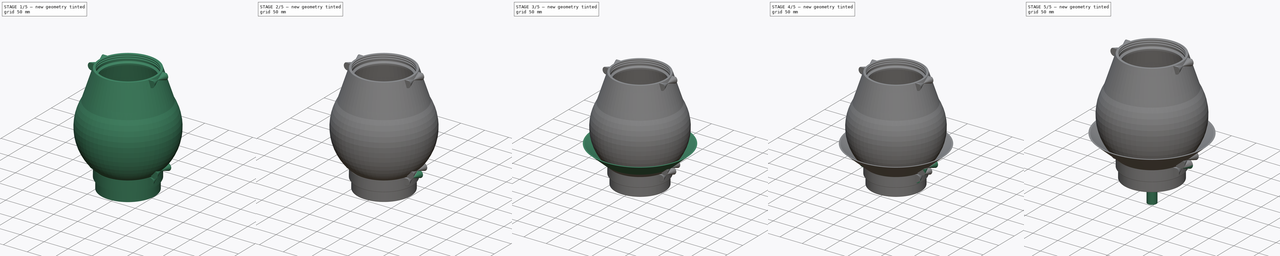
[diagram: build sequence overview — one tinted view per stage of 5, left to right]
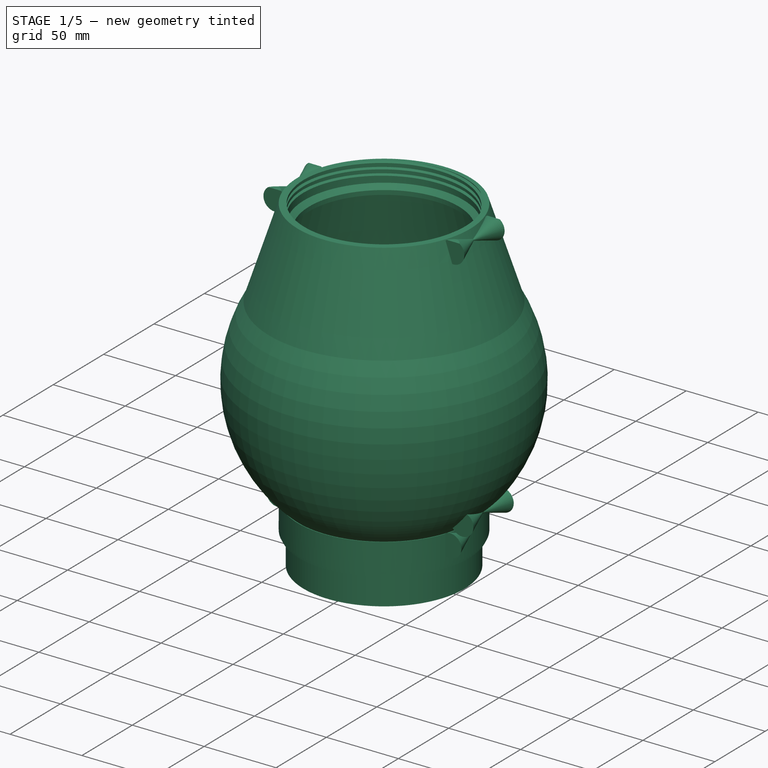
[diagram: stage 1 of 5 — iso view after this stage's code; geometry added in this stage tinted green]
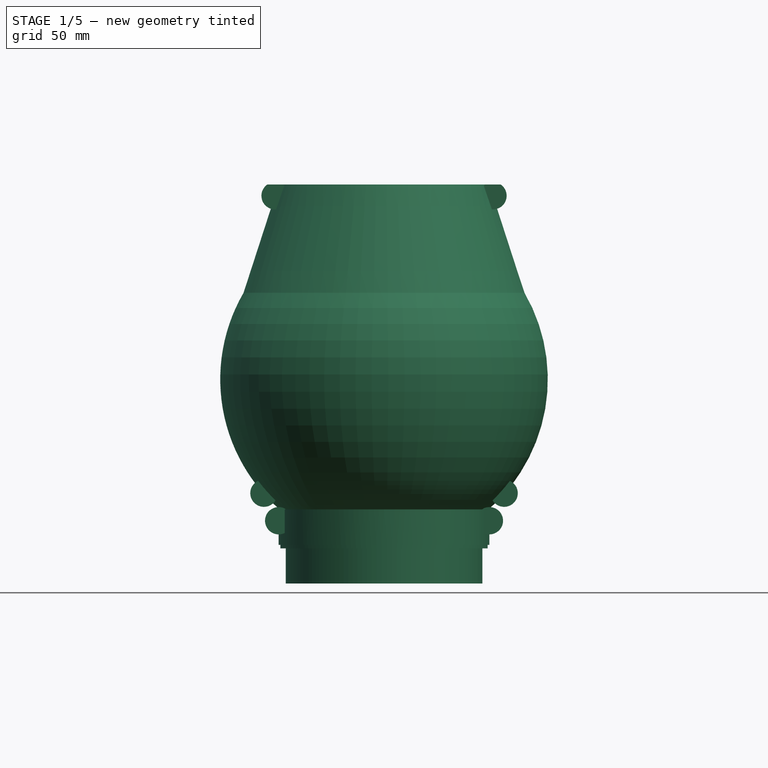
[diagram: stage 1 of 5 — front view after this stage's code; geometry added in this stage tinted green]
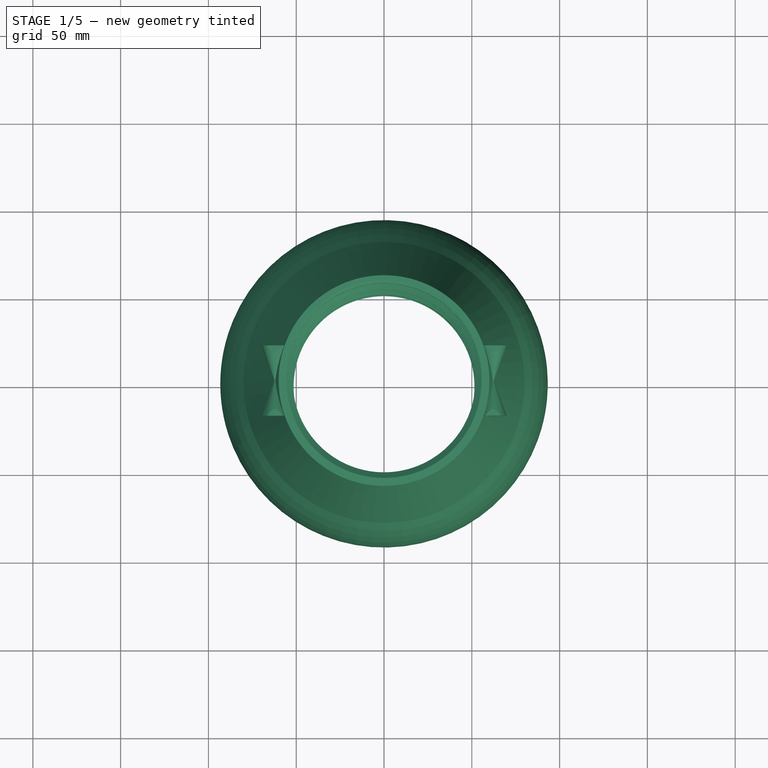
[diagram: stage 1 of 5 — top view after this stage's code; geometry added in this stage tinted green]
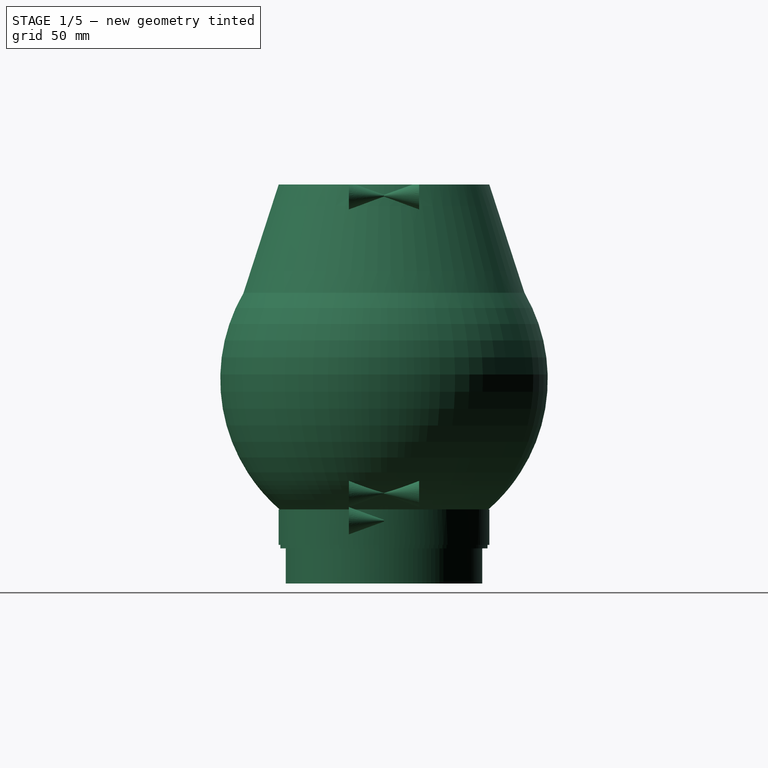
[diagram: stage 1 of 5 — right view after this stage's code; geometry added in this stage tinted green]
FCSTD DOCUMENT  (FreeCAD 2023.131R26244 +5365 (Git))
Label: Multi-Stage Gravity Filter
License: All rights reserved
LicenseURL: http://en.wikipedia.org/wiki/All_rights_reserved
objects: Sketcher::SketchObject×30, PartDesign::Mirrored×14, PartDesign::Pocket×10, PartDesign::Revolution×6, PartDesign::Body×6, PartDesign::PolarPattern×5, PartDesign::Pad×5, PartDesign::SubtractiveHelix×4, PartDesign::AdditiveHelix×3, PartDesign::Fillet×3, PartDesign::Groove×2, Spreadsheet::Sheet×1, PartDesign::Chamfer×1
note: 225 computed .brp shape members not serialized (recipe doc carries the construction recipe); baked Part::Feature solids carry a one-line shape summary decoded from their .brp

FEATURE [PartDesign::Body] Body001  label="Filter Plate"
  AutoGroupSolids = false
  ClaimAllChildren = false
  ExportMode = 0
  Group = -> [Sketch003,Revolution001,Pocket008,Pocket009,Pocket010,Pocket011,Pocket012,Pocket013,PolarPattern005,PolarPattern006,PolarPattern007,PolarPattern008,PolarPattern009,Fillet,Sketch020,Sketch021,Sketch022,Sketch023,Sketch024,Sketch025]
  InvalidShape = false
  Origin = -> Origin001
  Tip = -> Fillet
  TreeRank = 21
  ValidateShape = true
  _ExportChildren = -> [Revolution001,Pocket008,Pocket009,Pocket010,Pocket011,Pocket012,Pocket013,PolarPattern005,PolarPattern006,PolarPattern007,PolarPattern008,PolarPattern009,Fillet]
  _GroupVersion = 1
FEATURE [Sketcher::SketchObject] Sketch039
  ArcFitTolerance = 1e-06
  AttachmentSupport = -> [XZ_Plane003]
  ExternalBSplineMaxDegree = 5
  ExternalBSplineTolerance = 0.0001
  FullyConstrained = true
  InternalTolerance = 1e-06
  InvalidShape = false
  MakeInternals = false
  MapMode = 5
  Placement = pos=(0,0,0) rot=(1,0,0;1.5708rad)
  Support = -> [XZ_Plane003]
  TreeRank = 43
  ValidateShape = true
  expr: Constraints[13] = <<Parameters>>.buchner_diameter / 2
  expr: Constraints[18] = <<Parameters>>.thickness
  expr: Constraints[19] = <<Parameters>>.thickness
  expr: Constraints[24] = <<Parameters>>.thickness
  expr: Constraints[29] = <<Parameters>>.buchner_adapter_length
  expr: Constraints[2] = <<Parameters>>.filter_diameter / 2 + <<Parameters>>.filter_plate_tolerance
  expr: Constraints[32] = <<Parameters>>.thickness
  expr: Constraints[37] = <<Parameters>>.thickness
  expr: Constraints[5] = <<Parameters>>.thickness + <<Parameters>>.thread_depth
  expr: Constraints[6] = <<Parameters>>.thread_overlap + <<Parameters>>.thickness
  sketch-geometry (13):
    g0: LineSegment StartX=-55.5 StartY=0 StartZ=0 EndX=-55.5 EndY=-13 EndZ=0
    g1: LineSegment StartX=-60 StartY=0 StartZ=0 EndX=-60 EndY=-20.2574 EndZ=0
    g2: LineSegment StartX=-60 StartY=0 StartZ=0 EndX=-55.5 EndY=0 EndZ=0
    g3: LineSegment StartX=-55.5 StartY=-13 StartZ=0 EndX=-51.5 EndY=-16 EndZ=0
    g4: LineSegment StartX=-56 StartY=-22.2574 StartZ=0 EndX=-56 EndY=-42.2574 EndZ=0
    g5: LineSegment StartX=-56 StartY=-22.2574 StartZ=0 EndX=-59 EndY=-22.2574 EndZ=0
    g6: LineSegment StartX=-59 StartY=-22.2574 StartZ=0 EndX=-59 EndY=-19.2574 EndZ=0
    g7: LineSegment StartX=-56 StartY=-42.2574 StartZ=0 EndX=-53 EndY=-42.2574 EndZ=0
    g8: LineSegment StartX=-53 StartY=-42.2574 StartZ=0 EndX=-53 EndY=-17.5 EndZ=0
    g9: LineSegment StartX=-53 StartY=-17.5 StartZ=0 EndX=-51.5 EndY=-16 EndZ=0
    g10: LineSegment StartX=-59 StartY=-19.2574 StartZ=0 EndX=-60 EndY=-20.2574 EndZ=0
    g11: LineSegment [constr] StartX=-57.8787 StartY=-22.3787 StartZ=0 EndX=-60 EndY=-20.2574 EndZ=0
    g12: LineSegment [constr] StartX=-53 StartY=-17.5 StartZ=0 EndX=-55.1213 EndY=-15.3787 EndZ=0
  constraints (39):
    c: PointOnObject(g0,g-1)
    c: Vertical(g0)
    c: DistanceX(g0,g-1) = 55.5
    c: PointOnObject(g1,g-1)
    c: Vertical(g1)
    c: DistanceX(g1,g0) = 4.5
    c: DistanceY(g0,g0) = 13
    c: Coincident(g2,g1)
    c: Coincident(g2,g0)
    c: Coincident(g3,g0)
    c: DistanceY(g3,g0) = 3
    c: DistanceX(g0,g3) = 4
    c: Vertical(g4)
    c: DistanceX(g4,g-1) = 56
    c: Coincident(g5,g4)
    c: Horizontal(g5)
    c: Coincident(g6,g5)
    c: Vertical(g6)
    c: DistanceX(g5,g4) = 3
    c: DistanceY(g5,g6) = 3
    c: Coincident(g7,g4)
    c: Horizontal(g7)
    c: Coincident(g8,g7)
    c: Vertical(g8)
    c: DistanceX(g4,g7) = 3
    c: Coincident(g9,g8)
    c: Coincident(g9,g3)
    c: Coincident(g10,g6)
    c: Coincident(g10,g1)
    c: DistanceY(g4,g4) = 20
    c: PointOnObject(g11,g9)
    c: Perpendicular(g11,g9)
    c: Distance(g11,g11) = 3
    c: Coincident(g11,g1)
    c: Coincident(g12,g8)
    c: PointOnObject(g12,g10)
    c: Perpendicular(g12,g10)
    c: Distance(g12,g8) = 3
    c: Angle(g8,g9) = 2.35619
FEATURE [PartDesign::Revolution] Revolution004
  AddSubType = 0
  Angle = 360
  Axis = (0,-2e-16,1)
  Base = (0,0,0)
  ClaimChildren = false
  Fit = 0
  FitJoin = 0
  InnerFit = 0
  InnerFitJoin = 0
  InvalidShape = false
  Linearize = true
  NewSolid = false
  Profile = -> Sketch039
  ReferenceAxis = -> Sketch039 [V_Axis]
  Suppress = false
  TreeRank = 136
  ValidateShape = true
  _ProfileBasedVersion = 1
FEATURE [Sketcher::SketchObject] Sketch040
  ArcFitTolerance = 1e-06
  AttachmentSupport = -> [XZ_Plane003]
  ExternalBSplineMaxDegree = 5
  ExternalBSplineTolerance = 0.0001
  FullyConstrained = true
  InternalTolerance = 1e-06
  InvalidShape = false
  MakeInternals = false
  MapMode = 5
  Placement = pos=(0,0,0) rot=(1,0,0;1.5708rad)
  Support = -> [XZ_Plane003]
  TreeRank = 45
  ValidateShape = true
  expr: Constraints[10] = <<Parameters>>.filter_diameter / 2 + <<Parameters>>.filter_plate_tolerance
  expr: Constraints[7] = <<Parameters>>.thread_pitch / 1.9
  expr: Constraints[8] = <<Parameters>>.thread_depth * 1.1
  expr: Constraints[9] = 90 - <<Parameters>>.thread_angle
  sketch-geometry (4):
    g0: LineSegment StartX=-55.5 StartY=2.10526 StartZ=0 EndX=-55.5 EndY=0 EndZ=0
    g1: LineSegment StartX=-55.5 StartY=0 StartZ=0 EndX=-57.15 EndY=0.769408 EndZ=0
    g2: LineSegment StartX=-55.5 StartY=2.10526 StartZ=0 EndX=-57.15 EndY=1.33586 EndZ=0
    g3: LineSegment StartX=-57.15 StartY=1.33586 StartZ=0 EndX=-57.15 EndY=0.769408 EndZ=0
  constraints (12):
    c: Vertical(g0)
    c: Coincident(g1,g0)
    c: Coincident(g2,g0)
    c: Coincident(g3,g2)
    c: Coincident(g3,g1)
    c: Vertical(g3)
    c: Equal(g2,g1)
    c: DistanceY(g0,g0) = 2.10526
    c: DistanceX(g2,g0) = 1.65
    c: Angle(g2,g0) = 1.13446
    c: DistanceX(g0,g-1) = 55.5
    c: DistanceY(g-1,g0) = 0
FEATURE [Sketcher::SketchObject] Sketch041
  ArcFitTolerance = 1e-06
  AttachmentSupport = -> [XZ_Plane003]
  ExternalBSplineMaxDegree = 5
  ExternalBSplineTolerance = 0.0001
  FullyConstrained = true
  InternalTolerance = 1e-06
  InvalidShape = false
  MakeInternals = false
  MapMode = 5
  Placement = pos=(0,0,0) rot=(1,0,0;1.5708rad)
  Support = -> [XZ_Plane003]
  TreeRank = 144
  ValidateShape = true
  expr: Constraints[0] = 1
  expr: Constraints[5] = <<Parameters>>.filter_diameter / 2 + <<Parameters>>.thickness + <<Parameters>>.thread_depth + <<Parameters>>.filter_plate_tolerance
  expr: Constraints[6] = (<<Parameters>>.thread_overlap + <<Parameters>>.thickness) / 2
  sketch-geometry (2):
    g0: ArcOfCircle CenterX=-60 CenterY=-6.5 CenterZ=0 NormalX=0 NormalY=0 NormalZ=1 AngleXU=0 Radius=0.5 StartAngle=1.5708 EndAngle=4.71239
    g1: LineSegment StartX=-60 StartY=-6 StartZ=0 EndX=-60 EndY=-7 EndZ=0
  constraints (7):
    c: Diameter(g0) = 1
    c: Vertical(g1)
    c: PointOnObject(g0,g1)
    c: Coincident(g0,g1)
    c: Coincident(g0,g1)
    c: DistanceX(g0,g-1) = 60
    c: DistanceY(g0,g-1) = 6.5
FEATURE [PartDesign::Pad] Pad003
  AddSubType = 0
  AlongSketchNormal = false
  AutoTaperInnerAngle = true
  BaseFeature = -> Revolution004
  CheckUpToFaceLimits = true
  ClaimChildren = false
  Direction = (0,-1,-2e-16)
  Fit = 0
  FitJoin = 0
  InnerFit = 0
  InnerFitJoin = 0
  InvalidShape = false
  Length = 20
  Length2 = 100
  Linearize = true
  NewSolid = false
  Profile = -> Sketch041
  Suppress = false
  TaperAngle = 20
  TaperInnerAngle = -20
  TaperInnerAngleRev = 0
  TreeRank = 153
  Type = 0
  ValidateShape = true
  _ProfileBasedVersion = 1
FEATURE [PartDesign::Mirrored] Mirrored009
  AddSubType = 0
  BaseFeature = -> Pad003
  CopyShape = false
  InvalidShape = false
  MirrorPlane = -> XZ_Plane003
  NewSolid = false
  OriginalSubs = -> [Pad003]
  Originals = -> [Pad003]
  ParallelTransform = true
  SubTransform = true
  Suppress = false
  TreeRank = 150
  ValidateShape = true
  _Version = 3
FEATURE [PartDesign::Mirrored] Mirrored010
  AddSubType = 0
  BaseFeature = -> Mirrored009
  CopyShape = false
  InvalidShape = false
  MirrorPlane = -> Sketch041 [V_Axis]
  NewSolid = false
  OriginalSubs = -> [Pad003]
  Originals = -> [Pad003]
  ParallelTransform = true
  SubTransform = true
  Suppress = false
  TreeRank = 151
  ValidateShape = true
  _Version = 3
FEATURE [PartDesign::Body] Body004  label="Buchner Adapter"
  AutoGroupSolids = false
  ClaimAllChildren = false
  ExportMode = 0
  Group = -> [Revolution004,Sketch039,Sketch040,Pad003,Mirrored009,Mirrored010,Mirrored011,Helix004,Sketch041,Sketch042,Pocket015,Chamfer,Fillet001,Fillet002]
  InvalidShape = false
  Origin = -> Origin004
  Tip = -> Fillet002
  TreeRank = 175
  ValidateShape = true
  _ExportChildren = -> [Revolution004,Pad003,Mirrored009,Mirrored010,Mirrored011,Helix004,Pocket015,Chamfer,Fillet001,Fillet002]
  _GroupVersion = 1
FEATURE [Sketcher::SketchObject] Sketch043
  ArcFitTolerance = 1e-06
  AttachmentSupport = -> [XZ_Plane004]
  ExternalBSplineMaxDegree = 5
  ExternalBSplineTolerance = 0.0001
  FullyConstrained = true
  InternalTolerance = 1e-06
  InvalidShape = false
  MakeInternals = false
  MapMode = 5
  Placement = pos=(0,0,0) rot=(1,0,0;1.5708rad)
  Support = -> [XZ_Plane004]
  TreeRank = 186
  ValidateShape = true
  expr: Constraints[10] = <<Parameters>>.thread_overlap
  expr: Constraints[11] = <<Parameters>>.thickness
  expr: Constraints[14] = <<Parameters>>.filter_diameter / 2 - <<Parameters>>.thickness
  expr: Constraints[15] = <<Parameters>>.thickness + <<Parameters>>.thread_depth
  expr: Constraints[19] = <<Parameters>>.thickness + <<Parameters>>.thread_depth
  expr: Constraints[20] = <<Parameters>>.thread_overlap + <<Parameters>>.thickness
  expr: Constraints[21] = <<Parameters>>.filter_diameter / 2 + <<Parameters>>.filter_plate_tolerance
  expr: Constraints[22] = <<Parameters>>.vase_height
  expr: Constraints[24] = <<Parameters>>.thickness
  expr: Constraints[25] = <<Parameters>>.thickness + <<Parameters>>.thread_overlap_tolerance
  expr: Constraints[28] = <<Parameters>>.thickness
  expr: Constraints[29] = <<Parameters>>.vase_diameter / 2
  expr: Constraints[30] = <<Parameters>>.vase_height / 3
  expr: Constraints[33] = <<Parameters>>.thickness
  expr: Constraints[38] = <<Parameters>>.thickness
  expr: Constraints[43] = <<Parameters>>.thickness
  expr: Constraints[44] = <<Parameters>>.thickness
  expr: Constraints[47] = <<Parameters>>.vase_height * 2 / 3
  expr: Constraints[53] = <<Parameters>>.filter_diameter / 2 + (<<Parameters>>.vase_diameter - <<Parameters>>.filter_diameter) / 2 * 2 / 3
  expr: Constraints[7] = <<Parameters>>.thickness / 2
  sketch-geometry (18):
    g0: LineSegment StartX=-59.5 StartY=0 StartZ=0 EndX=-55 EndY=0 EndZ=0
    g1: LineSegment StartX=-55 StartY=0 StartZ=0 EndX=-55 EndY=-8.5 EndZ=0
    g2: LineSegment StartX=-52 StartY=0 StartZ=0 EndX=-52 EndY=-10 EndZ=0
    g3: LineSegment StartX=-53.5 StartY=-10 StartZ=0 EndX=-52 EndY=-10 EndZ=0
    g4: LineSegment StartX=-53.5 StartY=-10 StartZ=0 EndX=-55 EndY=-8.5 EndZ=0
    g5: LineSegment StartX=-60 StartY=185 StartZ=0 EndX=-55.5 EndY=185 EndZ=0
    g6: LineSegment StartX=-55.5 StartY=185 StartZ=0 EndX=-55.5 EndY=172 EndZ=0
    g7: LineSegment StartX=-55.5 StartY=172 StartZ=0 EndX=-52 EndY=169 EndZ=0
    g8: LineSegment StartX=-52 StartY=169 StartZ=0 EndX=-52 EndY=166 EndZ=0
    g9: GeomPoint [constr] X=-92.5 Y=61.6667 Z=0
    g10: ArcOfCircle CenterX=4.7616 CenterY=74.0517 CenterZ=0 NormalX=0 NormalY=0 NormalZ=1 AngleXU=0 Radius=98.047 StartAngle=2.61495 EndAngle=3.99766
    g11: ArcOfCircle CenterX=7.7616 CenterY=74.0517 CenterZ=0 NormalX=0 NormalY=0 NormalZ=1 AngleXU=0 Radius=98.047 StartAngle=2.61495 EndAngle=3.66183
    g12: LineSegment [constr] StartX=-92.5 StartY=61.6667 StartZ=0 EndX=-89.5 EndY=61.6667 EndZ=0
    g13: LineSegment StartX=-80 StartY=123.333 StartZ=0 EndX=-60 EndY=185 EndZ=0
    g14: LineSegment StartX=-52 StartY=0 StartZ=0 EndX=-55 EndY=3 EndZ=0
    g15: LineSegment StartX=-55 StartY=3 StartZ=0 EndX=-77.3138 EndY=25.3138 EndZ=0
    g16: LineSegment StartX=-77 StartY=123.333 StartZ=0 EndX=-63.1622 EndY=166 EndZ=0
    g17: LineSegment StartX=-52 StartY=166 StartZ=0 EndX=-63.1622 EndY=166 EndZ=0
  constraints (55):
    c: Horizontal(g0)
    c: Coincident(g1,g0)
    c: Vertical(g1)
    c: Vertical(g2)
    c: Horizontal(g3)
    c: Coincident(g2,g3)
    c: Angle(g3,g4) = 2.35619
    c: DistanceX(g4,g2) = 1.5
    c: Coincident(g1,g4)
    c: Coincident(g3,g4)
    c: DistanceY(g2,g2) = 10
    c: DistanceX(g1,g2) = 3
    c: DistanceY(g0,g2) = 0
    c: PointOnObject(g0,g-1)
    c: DistanceX(g2,g-1) = 52
    c: DistanceX(g0,g0) = 4.5
    c: Horizontal(g5)
    c: Coincident(g6,g5)
    c: Vertical(g6)
    c: DistanceX(g5,g5) = 4.5
    c: DistanceY(g6,g5) = 13
    c: DistanceX(g5,g-1) = 55.5
    c: DistanceY(g-1,g5) = 185
    c: Coincident(g7,g6)
    c: DistanceY(g7,g6) = 3
    c: DistanceX(g6,g7) = 3.5
    c: Coincident(g8,g7)
    c: Vertical(g8)
    c: DistanceY(g8,g7) = 3
    c: DistanceX(g9,g-1) = 92.5
    c: DistanceY(g-1,g9) = 61.6667
    c: PointOnObject(g9,g10)
    c: Coincident(g10,g0)
    c: DistanceX(g10,g11) = 3
    c: DistanceY(g10,g11) = 0
    c: Coincident(g12,g9)
    c: PointOnObject(g12,g11)
    c: Horizontal(g12)
    c: DistanceX(g9,g12) = 3
    c: Coincident(g13,g10)
    c: Coincident(g13,g5)
    c: DistanceY(g10,g11) = 0
    c: Coincident(g14,g2)
    c: DistanceY(g2,g14) = 3
    c: DistanceX(g14,g2) = 3
    c: Coincident(g15,g14)
    c: Coincident(g11,g15)
    c: DistanceY(g-1,g10) = 123.333
    c: Coincident(g16,g11)
    c: Coincident(g17,g8)
    c: Coincident(g17,g16)
    c: Horizontal(g17)
    c: Parallel(g13,g16)
    c: DistanceX(g10,g-1) = 80
    c: Angle(g-1,g15) = 2.35619
FEATURE [PartDesign::Revolution] Revolution005
  AddSubType = 0
  Angle = 360
  Axis = (0,-2e-16,1)
  Base = (0,0,0)
  ClaimChildren = false
  Fit = 0
  FitJoin = 0
  InnerFit = 0
  InnerFitJoin = 0
  InvalidShape = false
  Linearize = true
  NewSolid = false
  Profile = -> Sketch043
  ReferenceAxis = -> Sketch043 [V_Axis]
  Suppress = false
  TreeRank = 193
  ValidateShape = true
  _ProfileBasedVersion = 1
FEATURE [Sketcher::SketchObject] Sketch044
  ArcFitTolerance = 1e-06
  AttachmentSupport = -> [XZ_Plane004]
  ExternalBSplineMaxDegree = 5
  ExternalBSplineTolerance = 0.0001
  FullyConstrained = true
  InternalTolerance = 1e-06
  InvalidShape = false
  MakeInternals = false
  MapMode = 5
  Placement = pos=(0,0,0) rot=(1,0,0;1.5708rad)
  Support = -> [XZ_Plane004]
  TreeRank = 194
  ValidateShape = true
  expr: Constraints[10] = <<Parameters>>.filter_diameter / 2 - <<Parameters>>.thread_overlap_tolerance + <<Parameters>>.filter_plate_tolerance
  expr: Constraints[11] = <<Parameters>>.thread_pitch / 2
  expr: Constraints[7] = <<Parameters>>.thread_pitch / 2.1
  expr: Constraints[8] = <<Parameters>>.thread_depth
  expr: Constraints[9] = 90 - <<Parameters>>.thread_angle
  sketch-geometry (4):
    g0: LineSegment StartX=-55 StartY=-2 StartZ=0 EndX=-55 EndY=-3.90476 EndZ=0
    g1: LineSegment StartX=-55 StartY=-3.90476 StartZ=0 EndX=-56.5 EndY=-3.2053 EndZ=0
    g2: LineSegment StartX=-55 StartY=-2 StartZ=0 EndX=-56.5 EndY=-2.69946 EndZ=0
    g3: LineSegment StartX=-56.5 StartY=-2.69946 StartZ=0 EndX=-56.5 EndY=-3.2053 EndZ=0
  constraints (12):
    c: Vertical(g0)
    c: Coincident(g1,g0)
    c: Coincident(g2,g0)
    c: Coincident(g3,g2)
    c: Coincident(g3,g1)
    c: Vertical(g3)
    c: Equal(g1,g2)
    c: DistanceY(g0,g0) = 1.90476
    c: DistanceX(g2,g0) = 1.5
    c: Angle(g2,g0) = 1.13446
    c: DistanceX(g0,g-1) = 55
    c: DistanceY(g0,g-1) = 2
FEATURE [PartDesign::AdditiveHelix] Helix005
  AddSubType = 0
  Angle = 0
  Axis = (0,0,1)
  Base = (0,0,0)
  BaseFeature = -> Revolution005
  ClaimChildren = false
  Fit = 0
  FitJoin = 0
  Growth = 0
  HasBeenEdited = true
  Height = 4
  InnerFit = 0
  InnerFitJoin = 0
  InvalidShape = false
  LeftHanded = false
  Linearize = true
  Mode = 1
  NewSolid = false
  Outside = false
  Pitch = 4
  Profile = -> Sketch044
  ReferenceAxis = -> Sketch044 [V_Axis]
  Reversed = true
  Suppress = false
  TreeRank = 195
  Turns = 1
  ValidateShape = true
  _ProfileBasedVersion = 1
  expr: Pitch = <<Parameters>>.thread_pitch
FEATURE [Sketcher::SketchObject] Sketch045
  ArcFitTolerance = 1e-06
  AttachmentSupport = -> [XZ_Plane004]
  ExternalBSplineMaxDegree = 5
  ExternalBSplineTolerance = 0.0001
  FullyConstrained = true
  InternalTolerance = 1e-06
  InvalidShape = false
  MakeInternals = false
  MapMode = 5
  Placement = pos=(0,0,0) rot=(1,0,0;1.5708rad)
  Support = -> [XZ_Plane004]
  TreeRank = 196
  ValidateShape = true
  expr: Constraints[10] = <<Parameters>>.filter_diameter / 2 + <<Parameters>>.filter_plate_tolerance
  expr: Constraints[11] = <<Parameters>>.vase_height
  expr: Constraints[7] = <<Parameters>>.thread_pitch / 1.9
  expr: Constraints[8] = <<Parameters>>.thread_depth * 1.1
  expr: Constraints[9] = 90 - <<Parameters>>.thread_angle
  sketch-geometry (4):
    g0: LineSegment StartX=-55.5 StartY=187.105 StartZ=0 EndX=-55.5 EndY=185 EndZ=0
    g1: LineSegment StartX=-55.5 StartY=185 StartZ=0 EndX=-57.15 EndY=185.769 EndZ=0
    g2: LineSegment StartX=-55.5 StartY=187.105 StartZ=0 EndX=-57.15 EndY=186.336 EndZ=0
    g3: LineSegment StartX=-57.15 StartY=186.336 StartZ=0 EndX=-57.15 EndY=185.769 EndZ=0
  constraints (12):
    c: Vertical(g0)
    c: Coincident(g1,g0)
    c: Coincident(g2,g0)
    c: Coincident(g3,g2)
    c: Coincident(g3,g1)
    c: Vertical(g3)
    c: Equal(g2,g1)
    c: DistanceY(g0,g0) = 2.10526
    c: DistanceX(g2,g0) = 1.65
    c: Angle(g2,g0) = 1.13446
    c: DistanceX(g0,g-1) = 55.5
    c: DistanceY(g-1,g0) = 185
FEATURE [PartDesign::SubtractiveHelix] Helix006
  AddSubType = 1
  Angle = 0
  Axis = (0,0,1)
  Base = (0,0,0)
  BaseFeature = -> Helix005
  ClaimChildren = false
  Fit = 0
  FitJoin = 0
  Growth = 0
  HasBeenEdited = true
  Height = 11.5
  InnerFit = 0
  InnerFitJoin = 0
  InvalidShape = false
  LeftHanded = false
  Linearize = true
  Mode = 0
  NewSolid = false
  Outside = false
  Pitch = 4
  Profile = -> Sketch045
  ReferenceAxis = -> Sketch045 [V_Axis]
  Reversed = true
  Suppress = false
  TreeRank = 197
  Turns = 2.875
  ValidateShape = true
  _ProfileBasedVersion = 1
  expr: Height = <<Parameters>>.thread_overlap + <<Parameters>>.thickness / 2
  expr: Pitch = <<Parameters>>.thread_pitch
FEATURE [Sketcher::SketchObject] Sketch046
  ArcFitTolerance = 1e-06
  AttachmentSupport = -> [XZ_Plane004]
  ExternalBSplineMaxDegree = 5
  ExternalBSplineTolerance = 0.0001
  FullyConstrained = false
  InternalTolerance = 1e-06
  InvalidShape = false
  MakeInternals = false
  MapMode = 5
  Placement = pos=(0,0,0) rot=(1,0,0;1.5708rad)
  Support = -> [XZ_Plane004]
  TreeRank = 198
  ValidateShape = true
  expr: Constraints[0] = 1
  sketch-geometry (4):
    g0: ArcOfCircle CenterX=-68.3923 CenterY=9.18885 CenterZ=0 NormalX=0 NormalY=0 NormalZ=1 AngleXU=0 Radius=0.5 StartAngle=2.33802 EndAngle=5.47961
    g1: LineSegment StartX=-68.7394 StartY=9.54877 StartZ=0 EndX=-68.0453 EndY=8.82893 EndZ=0
    g2: ArcOfCircle CenterX=-62.0469 CenterY=178.573 CenterZ=0 NormalX=0 NormalY=0 NormalZ=1 AngleXU=0 Radius=0.5 StartAngle=1.26683 EndAngle=4.40842
    g3: LineSegment StartX=-62.1966 StartY=178.096 StartZ=0 EndX=-61.8973 EndY=179.05 EndZ=0
  constraints (8):
    c: Diameter(g0) = 1
    c: PointOnObject(g0,g1)
    c: Coincident(g0,g1)
    c: Coincident(g0,g1)
    c: Diameter(g2) = 1
    c: PointOnObject(g2,g3)
    c: Coincident(g2,g3)
    c: Coincident(g2,g3)
FEATURE [PartDesign::Pad] Pad004
  AddSubType = 0
  AlongSketchNormal = false
  AutoTaperInnerAngle = true
  BaseFeature = -> Helix006
  CheckUpToFaceLimits = true
  ClaimChildren = false
  Direction = (0,-1,-2e-16)
  Fit = 0
  FitJoin = 0
  InnerFit = 0
  InnerFitJoin = 0
  InvalidShape = false
  Length = 20
  Length2 = 100
  Linearize = true
  NewSolid = false
  Profile = -> Sketch046
  Suppress = false
  TaperAngle = 20
  TaperInnerAngle = -20
  TaperInnerAngleRev = 0
  TreeRank = 200
  Type = 0
  ValidateShape = true
  _ProfileBasedVersion = 1
FEATURE [PartDesign::Mirrored] Mirrored012
  AddSubType = 0
  BaseFeature = -> Pad004
  CopyShape = false
  InvalidShape = false
  MirrorPlane = -> Sketch046 [V_Axis]
  NewSolid = false
  OriginalSubs = -> [Pad004]
  Originals = -> [Pad004]
  ParallelTransform = true
  SubTransform = true
  Suppress = false
  TreeRank = 201
  ValidateShape = true
  _Version = 3
FEATURE [PartDesign::Mirrored] Mirrored013
  AddSubType = 0
  BaseFeature = -> Mirrored012
  CopyShape = false
  InvalidShape = false
  MirrorPlane = -> XZ_Plane004
  NewSolid = false
  OriginalSubs = -> [Mirrored012,Pad004]
  Originals = -> [Mirrored012,Pad004]
  ParallelTransform = true
  SubTransform = true
  Suppress = false
  TreeRank = 202
  ValidateShape = true
  _Version = 3
FEATURE [Sketcher::SketchObject] Sketch047
  ArcFitTolerance = 1e-06
  AttachmentSupport = -> [XZ_Plane004]
  ExternalBSplineMaxDegree = 5
  ExternalBSplineTolerance = 0.0001
  FullyConstrained = false
  InternalTolerance = 1e-06
  InvalidShape = false
  MakeInternals = false
  MapMode = 5
  Placement = pos=(0,0,0) rot=(1,0,0;1.5708rad)
  Support = -> [XZ_Plane004]
  TreeRank = 203
  ValidateShape = true
  expr: Constraints[8] = <<Parameters>>.vase_height
  sketch-geometry (4):
    g0: LineSegment StartX=-327.88 StartY=386.316 StartZ=0 EndX=357.665 EndY=386.316 EndZ=0
    g1: LineSegment StartX=357.665 StartY=386.316 StartZ=0 EndX=357.665 EndY=185 EndZ=0
    g2: LineSegment StartX=357.665 StartY=185 StartZ=0 EndX=-327.88 EndY=185 EndZ=0
    g3: LineSegment StartX=-327.88 StartY=185 StartZ=0 EndX=-327.88 EndY=386.316 EndZ=0
  constraints (9):
    c: Coincident(g0,g1)
    c: Coincident(g1,g2)
    c: Coincident(g2,g3)
    c: Coincident(g3,g0)
    c: Horizontal(g0)
    c: Horizontal(g2)
    c: Vertical(g1)
    c: Vertical(g3)
    c: DistanceY(g-1,g1) = 185
FEATURE [PartDesign::Pocket] Pocket016
  AddSubType = 1
  AutoTaperInnerAngle = true
  BaseFeature = -> Mirrored013
  CheckUpToFaceLimits = true
  ClaimChildren = false
  Fit = 0
  FitJoin = 0
  InnerFit = 0
  InnerFitJoin = 0
  InvalidShape = false
  Length = 1000
  Length2 = 1000
  Linearize = true
  NewSolid = false
  Profile = -> Sketch047
  Suppress = false
  TaperInnerAngle = 0
  TaperInnerAngleRev = 0
  TreeRank = 204
  Type = 4
  ValidateShape = true
  _ProfileBasedVersion = 1
  _Version = 1
FEATURE [PartDesign::Body] Body005  label="Vase Layer"
  AutoGroupSolids = false
  ClaimAllChildren = false
  ExportMode = 0
  FixShape = 1
  Group = -> [Sketch043,Revolution005,Sketch044,Helix005,Sketch045,Helix006,Sketch046,Pad004,Mirrored012,Mirrored013,Sketch047,Pocket016]
  InvalidShape = false
  Origin = -> Origin005
  Tip = -> Pocket016
  TreeRank = 41
  ValidateShape = true
  _ExportChildren = -> [Revolution005,Helix005,Helix006,Pad004,Mirrored012,Mirrored013,Pocket016]
  _GroupVersion = 1
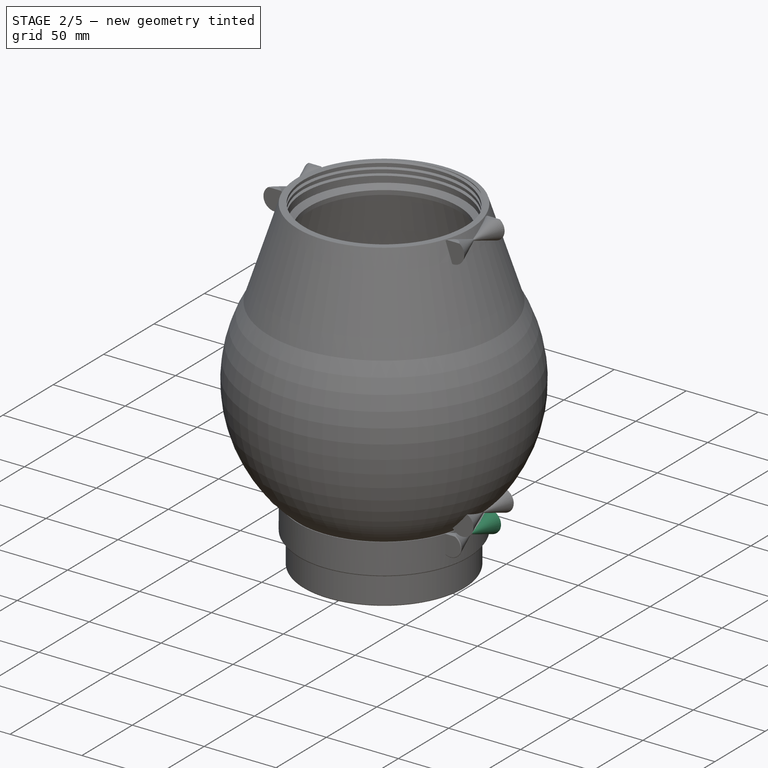
[diagram: stage 2 of 5 — iso view after this stage's code; geometry added in this stage tinted green]
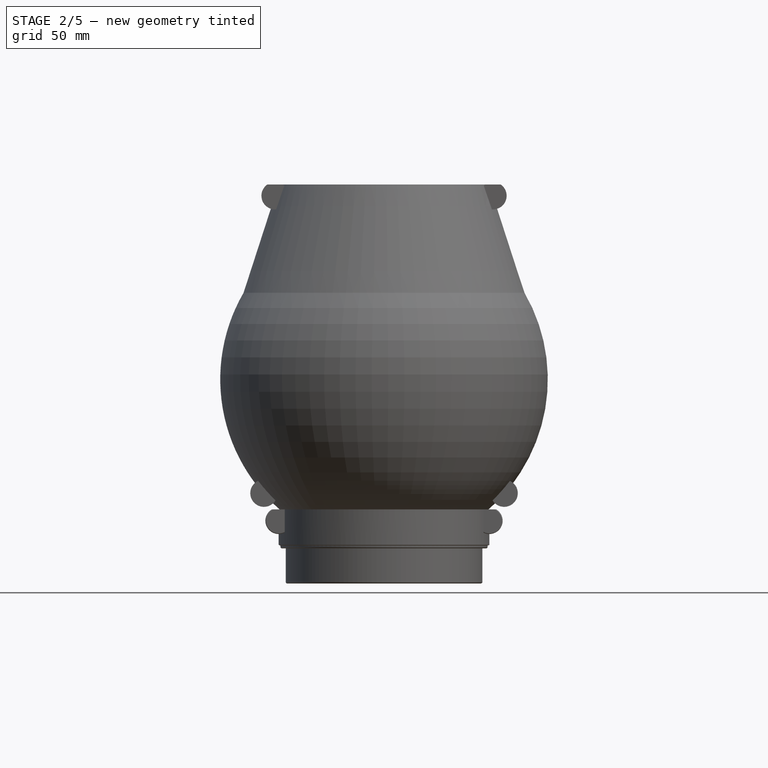
[diagram: stage 2 of 5 — front view after this stage's code; geometry added in this stage tinted green]
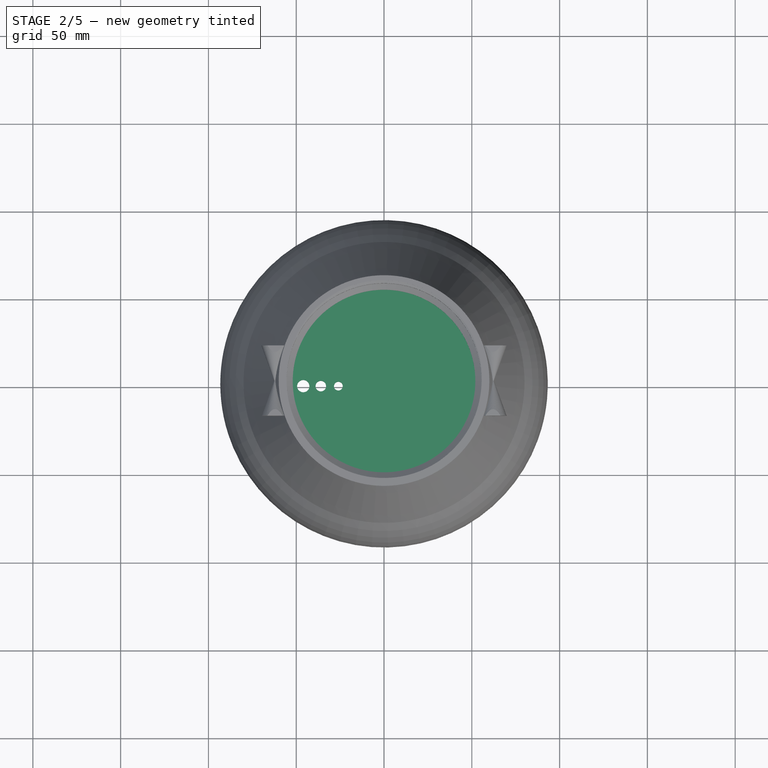
[diagram: stage 2 of 5 — top view after this stage's code; geometry added in this stage tinted green]
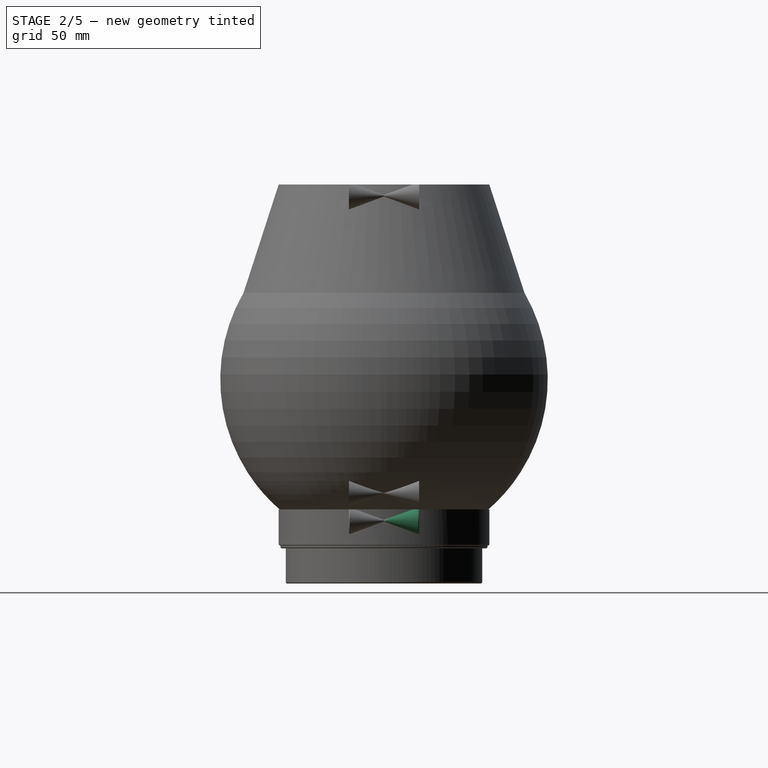
[diagram: stage 2 of 5 — right view after this stage's code; geometry added in this stage tinted green]
FEATURE [Sketcher::SketchObject] Sketch003
  ArcFitTolerance = 1e-06
  AttachmentSupport = -> [XZ_Plane001]
  ExternalBSplineMaxDegree = 5
  ExternalBSplineTolerance = 0.0001
  FullyConstrained = true
  InternalTolerance = 1e-06
  InvalidShape = false
  MakeInternals = false
  MapMode = 5
  Placement = pos=(0,0,0) rot=(1,0,0;1.5708rad)
  Support = -> [XZ_Plane001]
  TreeRank = 50
  ValidateShape = true
  expr: Constraints[10] = <<Parameters>>.thickness + <<Parameters>>.filter_plate_tolerance
  expr: Constraints[2] = <<Parameters>>.filter_diameter / 2
  expr: Constraints[6] = <<Parameters>>.thickness
  expr: Constraints[9] = <<Parameters>>.thickness
  sketch-geometry (5):
    g0: LineSegment StartX=0 StartY=3 StartZ=0 EndX=-55 EndY=3 EndZ=0
    g1: LineSegment StartX=-55 StartY=3 StartZ=0 EndX=-55 EndY=0 EndZ=0
    g2: LineSegment StartX=-51.5 StartY=-3 StartZ=0 EndX=0 EndY=-3 EndZ=0
    g3: LineSegment StartX=-55 StartY=0 StartZ=0 EndX=-51.5 EndY=-3 EndZ=0
    g4: LineSegment StartX=0 StartY=3 StartZ=0 EndX=0 EndY=-3 EndZ=0
  constraints (15):
    c: PointOnObject(g0,g-2)
    c: Horizontal(g0)
    c: DistanceX(g0,g-1) = 55
    c: Coincident(g1,g0)
    c: PointOnObject(g1,g-1)
    c: Vertical(g1)
    c: DistanceY(g-1,g0) = 3
    c: PointOnObject(g2,g-2)
    c: Horizontal(g2)
    c: DistanceY(g2,g-1) = 3
    c: DistanceX(g1,g2) = 3.5
    c: Coincident(g3,g1)
    c: Coincident(g3,g2)
    c: Coincident(g4,g0)
    c: Coincident(g4,g2)
FEATURE [PartDesign::Revolution] Revolution001
  AddSubType = 0
  Angle = 360
  Axis = (0,-2e-16,1)
  Base = (0,0,0)
  ClaimChildren = false
  Fit = 0
  FitJoin = 0
  InnerFit = 0
  InnerFitJoin = 0
  InvalidShape = false
  Linearize = true
  NewSolid = false
  Profile = -> Sketch003
  ReferenceAxis = -> Sketch003 [V_Axis]
  Suppress = false
  TreeRank = 51
  ValidateShape = true
  _ProfileBasedVersion = 1
FEATURE [Sketcher::SketchObject] Sketch020
  ArcFitTolerance = 1e-06
  ExternalBSplineMaxDegree = 5
  ExternalBSplineTolerance = 0.0001
  FullyConstrained = true
  InternalTolerance = 1e-06
  InvalidShape = false
  MakeInternals = false
  MapMode = 5
  TreeRank = 106
  ValidateShape = true
  expr: Constraints[1] = Spreadsheet.ring_1_size
  expr: Constraints[2] = <<Parameters>>.ring_1_diameter
  sketch-geometry (1):
    g0: Circle CenterX=-46 CenterY=0 CenterZ=0 NormalX=0 NormalY=0 NormalZ=1 AngleXU=0 Radius=3.5
  constraints (3):
    c: PointOnObject(g0,g-1)
    c: Diameter(g0) = 7
    c: DistanceX(g0,g-1) = 46
FEATURE [PartDesign::Pocket] Pocket008
  AddSubType = 1
  AutoTaperInnerAngle = true
  BaseFeature = -> Revolution001
  CheckUpToFaceLimits = true
  ClaimChildren = false
  Fit = 0
  FitJoin = 0
  InnerFit = 0
  InnerFitJoin = 0
  InvalidShape = false
  Length = 100
  Length2 = 100
  Linearize = true
  NewSolid = false
  Profile = -> Sketch020
  Suppress = false
  TaperInnerAngle = 0
  TaperInnerAngleRev = 0
  TreeRank = 123
  Type = 4
  ValidateShape = true
  _ProfileBasedVersion = 1
  _Version = 1
FEATURE [Sketcher::SketchObject] Sketch021
  ArcFitTolerance = 1e-06
  ExternalBSplineMaxDegree = 5
  ExternalBSplineTolerance = 0.0001
  FullyConstrained = true
  InternalTolerance = 1e-06
  InvalidShape = false
  MakeInternals = false
  MapMode = 5
  TreeRank = 107
  ValidateShape = true
  expr: Constraints[1] = <<Parameters>>.ring_2_size
  expr: Constraints[2] = <<Parameters>>.ring_2_diameter
  sketch-geometry (1):
    g0: Circle CenterX=-36 CenterY=0 CenterZ=0 NormalX=0 NormalY=0 NormalZ=1 AngleXU=0 Radius=3
  constraints (3):
    c: PointOnObject(g0,g-1)
    c: Diameter(g0) = 6
    c: DistanceX(g0,g-1) = 36
FEATURE [PartDesign::Pocket] Pocket009
  AddSubType = 1
  AutoTaperInnerAngle = true
  BaseFeature = -> Pocket008
  CheckUpToFaceLimits = true
  ClaimChildren = false
  Fit = 0
  FitJoin = 0
  InnerFit = 0
  InnerFitJoin = 0
  InvalidShape = false
  Length = 100
  Length2 = 100
  Linearize = true
  NewSolid = false
  Profile = -> Sketch021
  Suppress = false
  TaperInnerAngle = 0
  TaperInnerAngleRev = 0
  TreeRank = 124
  Type = 4
  ValidateShape = true
  _ProfileBasedVersion = 1
  _Version = 1
FEATURE [Sketcher::SketchObject] Sketch022
  ArcFitTolerance = 1e-06
  ExternalBSplineMaxDegree = 5
  ExternalBSplineTolerance = 0.0001
  FullyConstrained = true
  InternalTolerance = 1e-06
  InvalidShape = false
  MakeInternals = false
  MapMode = 5
  TreeRank = 108
  ValidateShape = true
  expr: Constraints[1] = <<Parameters>>.ring_3_size
  expr: Constraints[2] = <<Parameters>>.ring_3_diameter
  sketch-geometry (1):
    g0: Circle CenterX=-26 CenterY=0 CenterZ=0 NormalX=0 NormalY=0 NormalZ=1 AngleXU=0 Radius=2.5
  constraints (3):
    c: PointOnObject(g0,g-1)
    c: Diameter(g0) = 5
    c: DistanceX(g0,g-1) = 26
FEATURE [PartDesign::Pocket] Pocket010
  AddSubType = 1
  AutoTaperInnerAngle = true
  BaseFeature = -> Pocket009
  CheckUpToFaceLimits = true
  ClaimChildren = false
  Fit = 0
  FitJoin = 0
  InnerFit = 0
  InnerFitJoin = 0
  InvalidShape = false
  Length = 100
  Length2 = 100
  Linearize = true
  NewSolid = false
  Profile = -> Sketch022
  Suppress = false
  TaperInnerAngle = 0
  TaperInnerAngleRev = 0
  TreeRank = 125
  Type = 4
  ValidateShape = true
  _ProfileBasedVersion = 1
  _Version = 1
FEATURE [PartDesign::Mirrored] Mirrored011
  AddSubType = 0
  BaseFeature = -> Mirrored010
  CopyShape = false
  InvalidShape = false
  MirrorPlane = -> YZ_Plane003
  NewSolid = false
  OriginalSubs = -> [Mirrored009]
  Originals = -> [Mirrored009]
  ParallelTransform = true
  SubTransform = true
  Suppress = false
  TreeRank = 152
  ValidateShape = true
  _Version = 3
FEATURE [PartDesign::SubtractiveHelix] Helix004
  AddSubType = 1
  Angle = 0
  Axis = (0,-2e-16,1)
  Base = (0,0,0)
  BaseFeature = -> Mirrored011
  ClaimChildren = false
  Fit = 0
  FitJoin = 0
  Growth = 0
  HasBeenEdited = true
  Height = 11.5
  InnerFit = 0
  InnerFitJoin = 0
  InvalidShape = false
  LeftHanded = false
  Linearize = true
  Mode = 0
  NewSolid = false
  Outside = false
  Pitch = 4
  Profile = -> Sketch040
  ReferenceAxis = -> Sketch040 [V_Axis]
  Reversed = true
  Suppress = false
  TreeRank = 135
  Turns = 2.875
  ValidateShape = true
  _ProfileBasedVersion = 1
  expr: Height = <<Parameters>>.thread_overlap + <<Parameters>>.thickness / 2
  expr: Pitch = <<Parameters>>.thread_pitch
FEATURE [Sketcher::SketchObject] Sketch042
  ArcFitTolerance = 1e-06
  AttachmentSupport = -> [XZ_Plane003]
  ExternalBSplineMaxDegree = 5
  ExternalBSplineTolerance = 0.0001
  FullyConstrained = false
  InternalTolerance = 1e-06
  InvalidShape = false
  MakeInternals = false
  MapMode = 5
  Placement = pos=(0,0,0) rot=(1,0,0;1.5708rad)
  Support = -> [XZ_Plane003]
  TreeRank = 154
  ValidateShape = true
  sketch-geometry (4):
    g0: LineSegment StartX=-121.389 StartY=0 StartZ=0 EndX=130.411 EndY=0 EndZ=0
    g1: LineSegment StartX=130.411 StartY=0 StartZ=0 EndX=130.411 EndY=53.9798 EndZ=0
    g2: LineSegment StartX=130.411 StartY=53.9798 StartZ=0 EndX=-121.389 EndY=53.9798 EndZ=0
    g3: LineSegment StartX=-121.389 StartY=53.9798 StartZ=0 EndX=-121.389 EndY=0 EndZ=0
  constraints (9):
    c: Coincident(g0,g1)
    c: Coincident(g1,g2)
    c: Coincident(g2,g3)
    c: Coincident(g3,g0)
    c: Horizontal(g0)
    c: Horizontal(g2)
    c: Vertical(g1)
    c: Vertical(g3)
    c: PointOnObject(g0,g-1)
FEATURE [PartDesign::Pocket] Pocket015
  AddSubType = 1
  AutoTaperInnerAngle = true
  BaseFeature = -> Helix004
  CheckUpToFaceLimits = true
  ClaimChildren = false
  Fit = 0
  FitJoin = 0
  InnerFit = 0
  InnerFitJoin = 0
  InvalidShape = false
  Length = 100
  Length2 = 100
  Linearize = true
  NewSolid = false
  Profile = -> Sketch042
  Suppress = false
  TaperInnerAngle = 0
  TaperInnerAngleRev = 0
  TreeRank = 155
  Type = 4
  ValidateShape = true
  _ProfileBasedVersion = 1
  _Version = 1
FEATURE [PartDesign::Chamfer] Chamfer
  AddSubType = 0
  Angle = 45
  Base = -> Pocket015 [Edge66]
  BaseFeature = -> Pocket015
  ChamferType = 0
  FlipDirection = false
  InvalidShape = false
  NewSolid = false
  Size = 1.41
  Size2 = 1
  SupportTransform = false
  Suppress = false
  TreeRank = 176
  ValidateShape = true
FEATURE [PartDesign::Fillet] Fillet001
  AddSubType = 0
  Base = -> Chamfer [Face39,Edge22]
  BaseFeature = -> Chamfer
  InvalidShape = false
  NewSolid = false
  Radius = 1
  SupportTransform = false
  Suppress = false
  TreeRank = 177
  ValidateShape = true
FEATURE [PartDesign::Fillet] Fillet002
  AddSubType = 0
  Base = -> Fillet001 [Edge71,Edge61,Edge31,Edge41]
  BaseFeature = -> Fillet001
  InvalidShape = false
  NewSolid = false
  Radius = 0.5
  SupportTransform = false
  Suppress = false
  TreeRank = 178
  ValidateShape = true
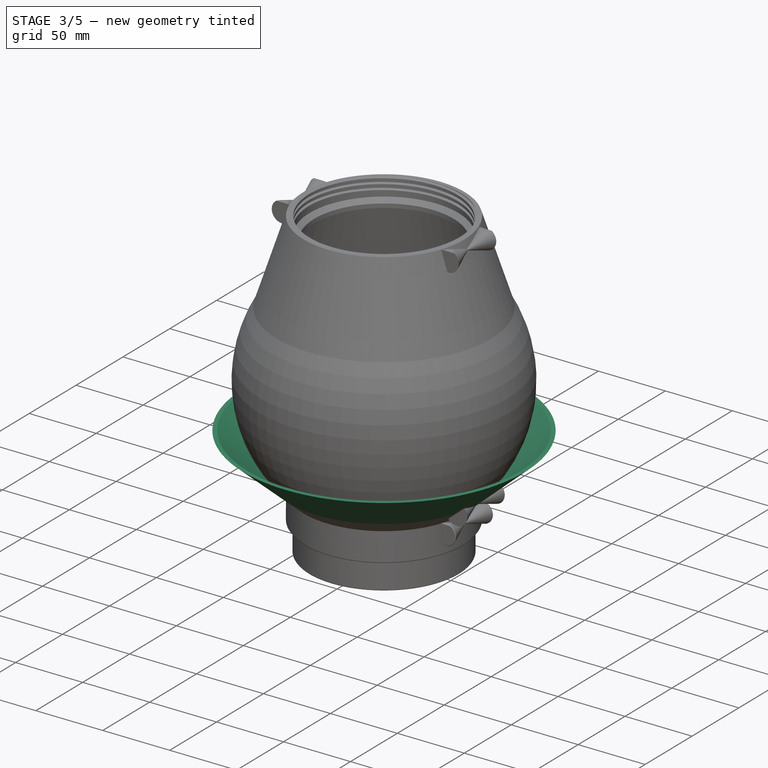
[diagram: stage 3 of 5 — iso view after this stage's code; geometry added in this stage tinted green]
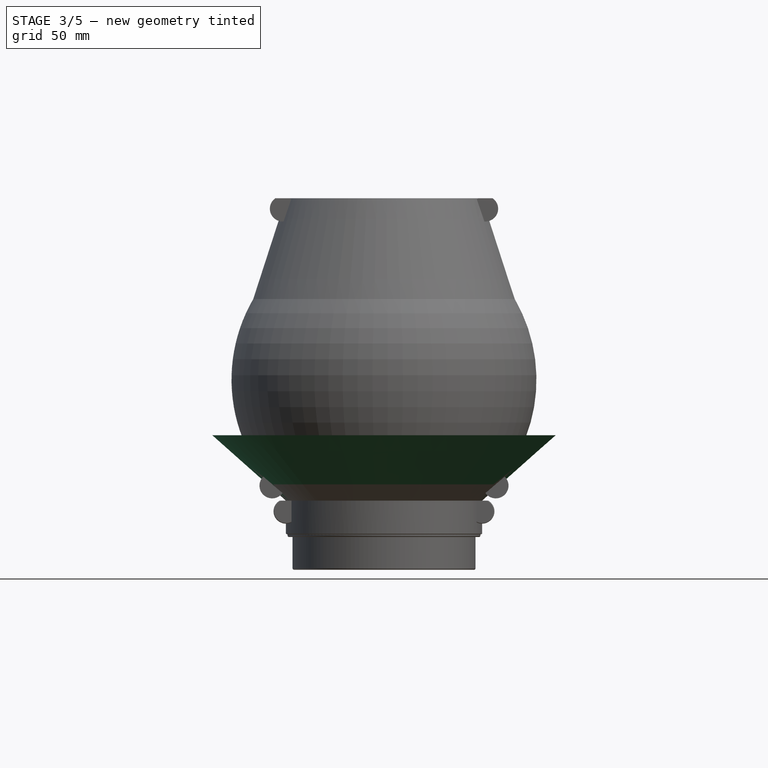
[diagram: stage 3 of 5 — front view after this stage's code; geometry added in this stage tinted green]
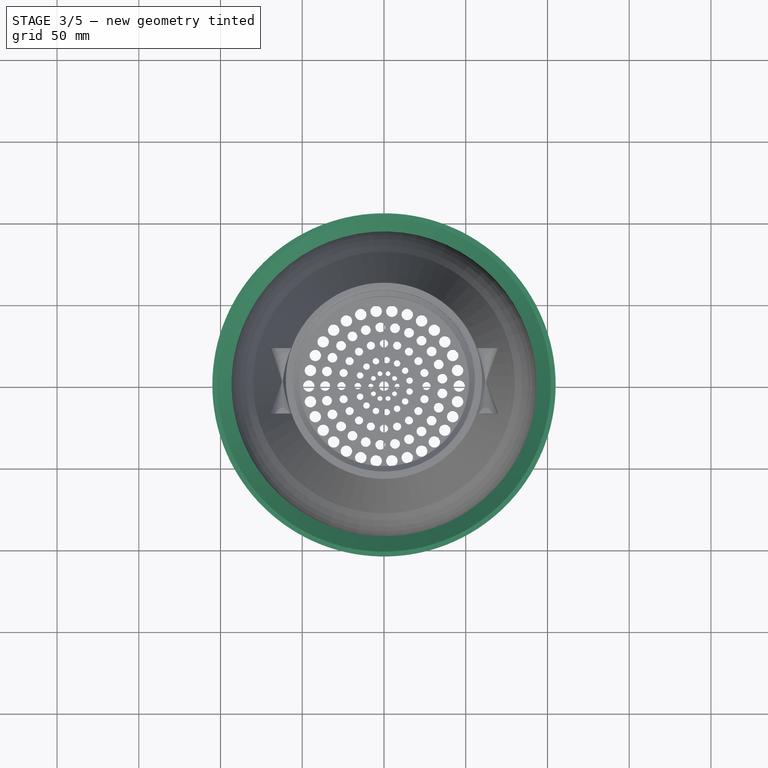
[diagram: stage 3 of 5 — top view after this stage's code; geometry added in this stage tinted green]
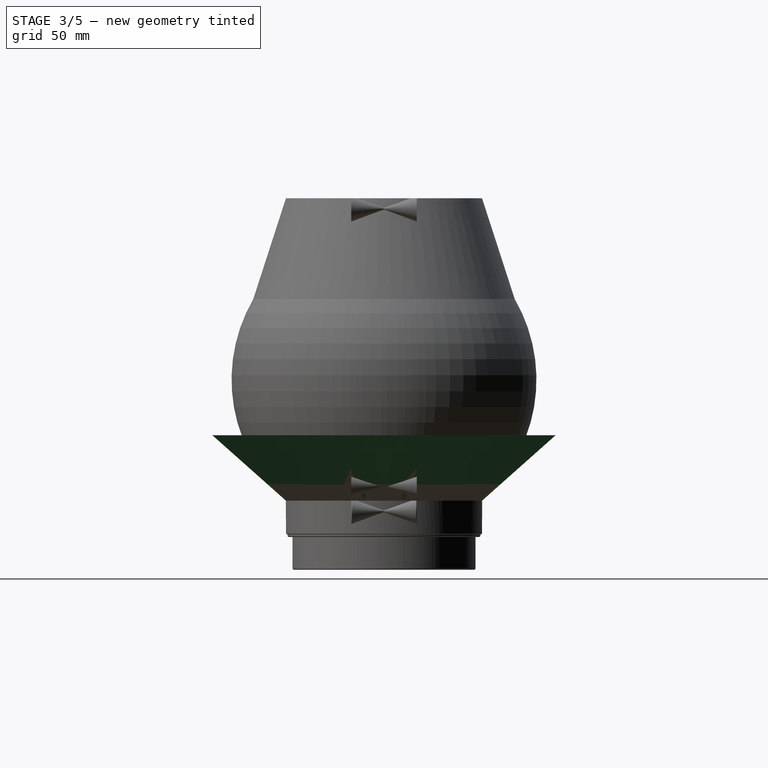
[diagram: stage 3 of 5 — right view after this stage's code; geometry added in this stage tinted green]
FEATURE [Sketcher::SketchObject] Sketch023
  ArcFitTolerance = 1e-06
  ExternalBSplineMaxDegree = 5
  ExternalBSplineTolerance = 0.0001
  FullyConstrained = true
  InternalTolerance = 1e-06
  InvalidShape = false
  MakeInternals = false
  MapMode = 5
  TreeRank = 109
  ValidateShape = true
  expr: Constraints[1] = <<Parameters>>.ring_4_size
  expr: Constraints[2] = <<Parameters>>.ring_4_diameter
  sketch-geometry (1):
    g0: Circle CenterX=-16 CenterY=0 CenterZ=0 NormalX=0 NormalY=0 NormalZ=1 AngleXU=0 Radius=2
  constraints (3):
    c: PointOnObject(g0,g-1)
    c: Diameter(g0) = 4
    c: DistanceX(g0,g-1) = 16
FEATURE [PartDesign::Pocket] Pocket011
  AddSubType = 1
  AutoTaperInnerAngle = true
  BaseFeature = -> Pocket010
  CheckUpToFaceLimits = true
  ClaimChildren = false
  Fit = 0
  FitJoin = 0
  InnerFit = 0
  InnerFitJoin = 0
  InvalidShape = false
  Length = 100
  Length2 = 100
  Linearize = true
  NewSolid = false
  Profile = -> Sketch023
  Suppress = false
  TaperInnerAngle = 0
  TaperInnerAngleRev = 0
  TreeRank = 126
  Type = 4
  ValidateShape = true
  _ProfileBasedVersion = 1
  _Version = 1
FEATURE [Sketcher::SketchObject] Sketch024
  ArcFitTolerance = 1e-06
  ExternalBSplineMaxDegree = 5
  ExternalBSplineTolerance = 0.0001
  FullyConstrained = true
  InternalTolerance = 1e-06
  InvalidShape = false
  MakeInternals = false
  MapMode = 5
  TreeRank = 110
  ValidateShape = true
  expr: Constraints[1] = <<Parameters>>.ring_5_size
  expr: Constraints[2] = <<Parameters>>.ring_5_diameter
  sketch-geometry (1):
    g0: Circle CenterX=-8 CenterY=0 CenterZ=0 NormalX=0 NormalY=0 NormalZ=1 AngleXU=0 Radius=1.5
  constraints (3):
    c: PointOnObject(g0,g-1)
    c: Diameter(g0) = 3
    c: DistanceX(g0,g-1) = 8
FEATURE [PartDesign::Pocket] Pocket012
  AddSubType = 1
  AutoTaperInnerAngle = true
  BaseFeature = -> Pocket011
  CheckUpToFaceLimits = true
  ClaimChildren = false
  Fit = 0
  FitJoin = 0
  InnerFit = 0
  InnerFitJoin = 0
  InvalidShape = false
  Length = 100
  Length2 = 100
  Linearize = true
  NewSolid = false
  Profile = -> Sketch024
  Suppress = false
  TaperInnerAngle = 0
  TaperInnerAngleRev = 0
  TreeRank = 127
  Type = 4
  ValidateShape = true
  _ProfileBasedVersion = 1
  _Version = 1
FEATURE [Sketcher::SketchObject] Sketch025
  ArcFitTolerance = 1e-06
  ExternalBSplineMaxDegree = 5
  ExternalBSplineTolerance = 0.0001
  FullyConstrained = true
  InternalTolerance = 1e-06
  InvalidShape = false
  MakeInternals = false
  MapMode = 5
  TreeRank = 111
  ValidateShape = true
  expr: Constraints[1] = <<Parameters>>.ring_5_size * 2
  sketch-geometry (1):
    g0: Circle CenterX=0 CenterY=0 CenterZ=0 NormalX=0 NormalY=0 NormalZ=1 AngleXU=0 Radius=3
  constraints (2):
    c: Coincident(g0,g-1)
    c: Diameter(g0) = 6
FEATURE [PartDesign::Pocket] Pocket013
  AddSubType = 1
  AutoTaperInnerAngle = true
  BaseFeature = -> Pocket012
  CheckUpToFaceLimits = true
  ClaimChildren = false
  Fit = 0
  FitJoin = 0
  InnerFit = 0
  InnerFitJoin = 0
  InvalidShape = false
  Length = 100
  Length2 = 100
  Linearize = true
  NewSolid = false
  Profile = -> Sketch025
  Suppress = false
  TaperInnerAngle = 0
  TaperInnerAngleRev = 0
  TreeRank = 128
  Type = 4
  ValidateShape = true
  _ProfileBasedVersion = 1
  _Version = 1
FEATURE [PartDesign::PolarPattern] PolarPattern005
  AddSubType = 0
  Angle = 360
  Axis = -> Sketch020 [N_Axis]
  BaseFeature = -> Pocket013
  CopyShape = false
  InvalidShape = false
  NewSolid = false
  Occurrences = 30
  OriginalSubs = -> [Pocket008]
  Originals = -> [Pocket008]
  ParallelTransform = true
  SubTransform = true
  Suppress = false
  TreeRank = 129
  ValidateShape = true
  _Version = 3
  expr: Occurrences = <<Parameters>>.ring_1_count
FEATURE [PartDesign::PolarPattern] PolarPattern006
  AddSubType = 0
  Angle = 360
  Axis = -> Sketch021 [N_Axis]
  BaseFeature = -> PolarPattern005
  CopyShape = false
  InvalidShape = false
  NewSolid = false
  Occurrences = 25
  OriginalSubs = -> [Pocket009]
  Originals = -> [Pocket009]
  ParallelTransform = true
  SubTransform = true
  Suppress = false
  TreeRank = 130
  ValidateShape = true
  _Version = 3
  expr: Occurrences = <<Parameters>>.ring_2_count
FEATURE [PartDesign::PolarPattern] PolarPattern007
  AddSubType = 0
  Angle = 360
  Axis = -> Sketch022 [N_Axis]
  BaseFeature = -> PolarPattern006
  CopyShape = false
  InvalidShape = false
  NewSolid = false
  Occurrences = 20
  OriginalSubs = -> [Pocket010]
  Originals = -> [Pocket010]
  ParallelTransform = true
  SubTransform = true
  Suppress = false
  TreeRank = 131
  ValidateShape = true
  _Version = 3
  expr: Occurrences = <<Parameters>>.ring_3_count
FEATURE [PartDesign::PolarPattern] PolarPattern008
  AddSubType = 0
  Angle = 360
  Axis = -> Sketch023 [N_Axis]
  BaseFeature = -> PolarPattern007
  CopyShape = false
  InvalidShape = false
  NewSolid = false
  Occurrences = 15
  OriginalSubs = -> [Pocket011]
  Originals = -> [Pocket011]
  ParallelTransform = true
  SubTransform = true
  Suppress = false
  TreeRank = 132
  ValidateShape = true
  _Version = 3
  expr: Occurrences = <<Parameters>>.ring_4_count
FEATURE [PartDesign::PolarPattern] PolarPattern009
  AddSubType = 0
  Angle = 360
  Axis = -> Sketch024 [N_Axis]
  BaseFeature = -> PolarPattern008
  CopyShape = false
  InvalidShape = false
  NewSolid = false
  Occurrences = 10
  OriginalSubs = -> [Pocket012]
  Originals = -> [Pocket012]
  ParallelTransform = true
  SubTransform = true
  Suppress = false
  TreeRank = 133
  ValidateShape = true
  _Version = 3
  expr: Occurrences = <<Parameters>>.ring_5_count
FEATURE [Sketcher::SketchObject] Sketch028
  ArcFitTolerance = 1e-06
  AttachmentSupport = -> [XZ_Plane]
  ExternalBSplineMaxDegree = 5
  ExternalBSplineTolerance = 0.0001
  FullyConstrained = true
  InternalTolerance = 1e-06
  InvalidShape = false
  MakeInternals = false
  MapMode = 5
  Placement = pos=(0,0,0) rot=(1,0,0;1.5708rad)
  Support = -> [XZ_Plane]
  TreeRank = 43
  ValidateShape = true
  expr: Constraints[10] = <<Parameters>>.thread_overlap
  expr: Constraints[11] = <<Parameters>>.thickness
  expr: Constraints[13] = <<Parameters>>.filter_diameter / 2 - <<Parameters>>.thread_overlap_tolerance + <<Parameters>>.filter_plate_tolerance
  expr: Constraints[18] = <<Parameters>>.funnel_height
  expr: Constraints[19] = <<Parameters>>.funnel_extra_diameter / 2
  expr: Constraints[20] = <<Parameters>>.thickness * 1.5 + <<Parameters>>.thread_overlap_tolerance
  expr: Constraints[23] = <<Parameters>>.thickness
  expr: Constraints[7] = <<Parameters>>.thickness / 2
  sketch-geometry (8):
    g0: LineSegment StartX=-60 StartY=0 StartZ=0 EndX=-55 EndY=0 EndZ=0
    g1: LineSegment StartX=-55 StartY=0 StartZ=0 EndX=-55 EndY=-8.5 EndZ=0
    g2: LineSegment StartX=-52 StartY=0 StartZ=0 EndX=-52 EndY=-10 EndZ=0
    g3: LineSegment StartX=-53.5 StartY=-10 StartZ=0 EndX=-52 EndY=-10 EndZ=0
    g4: LineSegment StartX=-53.5 StartY=-10 StartZ=0 EndX=-55 EndY=-8.5 EndZ=0
    g5: LineSegment StartX=-60 StartY=0 StartZ=0 EndX=-105 EndY=40 EndZ=0
    g6: LineSegment StartX=-105 StartY=40 StartZ=0 EndX=-102 EndY=40 EndZ=0
    g7: LineSegment StartX=-102 StartY=40 StartZ=0 EndX=-52 EndY=0 EndZ=0
  constraints (24):
    c: Horizontal(g0)
    c: Coincident(g1,g0)
    c: Vertical(g1)
    c: Vertical(g2)
    c: Horizontal(g3)
    c: Coincident(g2,g3)
    c: Angle(g3,g4) = 2.35619
    c: DistanceX(g4,g2) = 1.5
    c: Coincident(g1,g4)
    c: Coincident(g3,g4)
    c: DistanceY(g2,g2) = 10
    c: DistanceX(g1,g2) = 3
    c: PointOnObject(g0,g-1)
    c: DistanceX(g0,g-1) = 55
    c: PointOnObject(g2,g-1)
    c: Coincident(g5,g0)
    c: Coincident(g6,g5)
    c: Horizontal(g6)
    c: DistanceY(g0,g5) = 40
    c: DistanceX(g5,g0) = 45
    c: DistanceX(g0,g0) = 5
    c: Coincident(g7,g2)
    c: Coincident(g7,g6)
    c: DistanceX(g5,g6) = 3
FEATURE [PartDesign::Revolution] Revolution003
  AddSubType = 0
  Angle = 360
  Axis = (0,-2e-16,1)
  Base = (0,0,0)
  ClaimChildren = false
  Fit = 0
  FitJoin = 0
  InnerFit = 0
  InnerFitJoin = 0
  InvalidShape = false
  Linearize = true
  NewSolid = false
  Profile = -> Sketch028
  ReferenceAxis = -> Sketch028 [V_Axis]
  Suppress = false
  TreeRank = 139
  ValidateShape = true
  _ProfileBasedVersion = 1
FEATURE [PartDesign::Body] Body002  label="Filter Layer"
  AutoGroupSolids = false
  ClaimAllChildren = false
  ExportMode = 0
  FixShape = 1
  Group = -> [Sketch,Revolution,Sketch001,Sketch002,Helix001,Sketch032,Pad001,Mirrored001,Mirrored,Mirrored002,Helix,Sketch035,Pocket014,Sketch036,Groove]
  InvalidShape = false
  Origin = -> Origin002
  Tip = -> Groove
  TreeRank = 31
  ValidateShape = true
  _ExportChildren = -> [Revolution,Helix001,Pad001,Mirrored001,Mirrored,Mirrored002,Helix,Pocket014,Groove]
  _GroupVersion = 1
FEATURE [Sketcher::SketchObject] Sketch037
  ArcFitTolerance = 1e-06
  AttachmentSupport = -> [XZ_Plane]
  ExternalBSplineMaxDegree = 5
  ExternalBSplineTolerance = 0.0001
  FullyConstrained = true
  InternalTolerance = 1e-06
  InvalidShape = false
  MakeInternals = false
  MapMode = 5
  Placement = pos=(0,0,0) rot=(1,0,0;1.5708rad)
  Support = -> [XZ_Plane]
  TreeRank = 160
  ValidateShape = true
  expr: Constraints[1] = <<Parameters>>.filter_diameter / 2 + <<Parameters>>.thickness * 1.5 + <<Parameters>>.thread_overlap_tolerance
  expr: Constraints[2] = <<Parameters>>.funnel_extra_diameter / 2
  expr: Constraints[3] = <<Parameters>>.funnel_height
  sketch-geometry (2):
    g0: LineSegment [constr] StartX=-60 StartY=0 StartZ=0 EndX=-105 EndY=40 EndZ=0
    g1: Circle CenterX=-71.6224 CenterY=11 CenterZ=0 NormalX=0 NormalY=0 NormalZ=1 AngleXU=0 Radius=0.5
  constraints (7):
    c: PointOnObject(g0,g-1)
    c: DistanceX(g0,g-1) = 60
    c: DistanceX(g0,g0) = 45
    c: DistanceY(g-1,g0) = 40
    c: Tangent(g1,g0)
    c: Diameter(g1) = 1
    c: DistanceY(g-1,g1) = 11
FEATURE [Sketcher::SketchObject] Sketch038
  ArcFitTolerance = 1e-06
  AttachmentSupport = -> [XZ_Plane]
  ExternalBSplineMaxDegree = 5
  ExternalBSplineTolerance = 0.0001
  FullyConstrained = true
  InternalTolerance = 1e-06
  InvalidShape = false
  MakeInternals = false
  MapMode = 5
  Placement = pos=(0,0,0) rot=(1,0,0;1.5708rad)
  Support = -> [XZ_Plane]
  TreeRank = 166
  ValidateShape = true
  expr: Constraints[10] = <<Parameters>>.filter_diameter / 2 + <<Parameters>>.thickness * 1.5 + <<Parameters>>.thread_overlap_tolerance
  expr: Constraints[11] = <<Parameters>>.funnel_extra_diameter / 2
  expr: Constraints[12] = <<Parameters>>.funnel_height
  expr: Constraints[14] = <<Parameters>>.thickness
  expr: Constraints[8] = <<Parameters>>.filter_diameter / 2 - <<Parameters>>.thickness
  sketch-geometry (5):
    g0: LineSegment StartX=-52 StartY=0 StartZ=0 EndX=-102 EndY=40 EndZ=0
    g1: LineSegment StartX=-102 StartY=40 StartZ=0 EndX=0 EndY=40 EndZ=0
    g2: LineSegment StartX=0 StartY=40 StartZ=0 EndX=0 EndY=0 EndZ=0
    g3: LineSegment StartX=0 StartY=0 StartZ=0 EndX=-52 EndY=0 EndZ=0
    g4: LineSegment [constr] StartX=-60 StartY=0 StartZ=0 EndX=-105 EndY=40 EndZ=0
  constraints (15):
    c: PointOnObject(g0,g-1)
    c: Coincident(g1,g0)
    c: Horizontal(g1)
    c: Coincident(g2,g1)
    c: Coincident(g2,g-1)
    c: Vertical(g2)
    c: Coincident(g3,g2)
    c: Coincident(g3,g0)
    c: DistanceX(g0,g2) = 52
    c: PointOnObject(g4,g-1)
    c: DistanceX(g4,g2) = 60
    c: DistanceX(g4,g4) = 45
    c: DistanceY(g2,g4) = 40
    c: DistanceY(g0,g4) = 0
    c: DistanceX(g4,g0) = 3
FEATURE [PartDesign::AdditiveHelix] Helix003
  AddSubType = 0
  Angle = 0
  Axis = (0,-2e-16,1)
  Base = (0,0,0)
  BaseFeature = -> Revolution003
  ClaimChildren = false
  Fit = 0
  FitJoin = 0
  Growth = 0
  HasBeenEdited = true
  Height = 4
  InnerFit = 0
  InnerFitJoin = 0
  InvalidShape = false
  LeftHanded = false
  Linearize = true
  Mode = 1
  NewSolid = false
  Outside = false
  Pitch = 4
  Profile = -> Sketch030
  ReferenceAxis = -> Sketch030 [V_Axis]
  Suppress = false
  TreeRank = 167
  Turns = 1
  ValidateShape = true
  _ProfileBasedVersion = 1
  expr: Pitch = <<Parameters>>.thread_pitch
FEATURE [PartDesign::Body] Body  label="Funnel"
  AutoGroupSolids = false
  ClaimAllChildren = false
  ExportMode = 0
  FixShape = 2
  Group = -> [Revolution003,Helix003,Sketch028,Sketch030,Sketch037,Sketch038,Pad,Mirrored007,Mirrored008,Mirrored006,Groove001]
  InvalidShape = false
  Origin = -> Origin
  Tip = -> Groove001
  TreeRank = 11
  ValidateShape = true
  _ExportChildren = -> [Revolution003,Helix003,Pad,Mirrored007,Mirrored008,Mirrored006,Groove001]
  _GroupVersion = 1
FEATURE [PartDesign::Fillet] Fillet
  AddSubType = 0
  Base = -> PolarPattern009 [Edge1]
  BaseFeature = -> PolarPattern009
  InvalidShape = false
  NewSolid = false
  Radius = 0.5
  SupportTransform = false
  Suppress = false
  TreeRank = 173
  ValidateShape = true
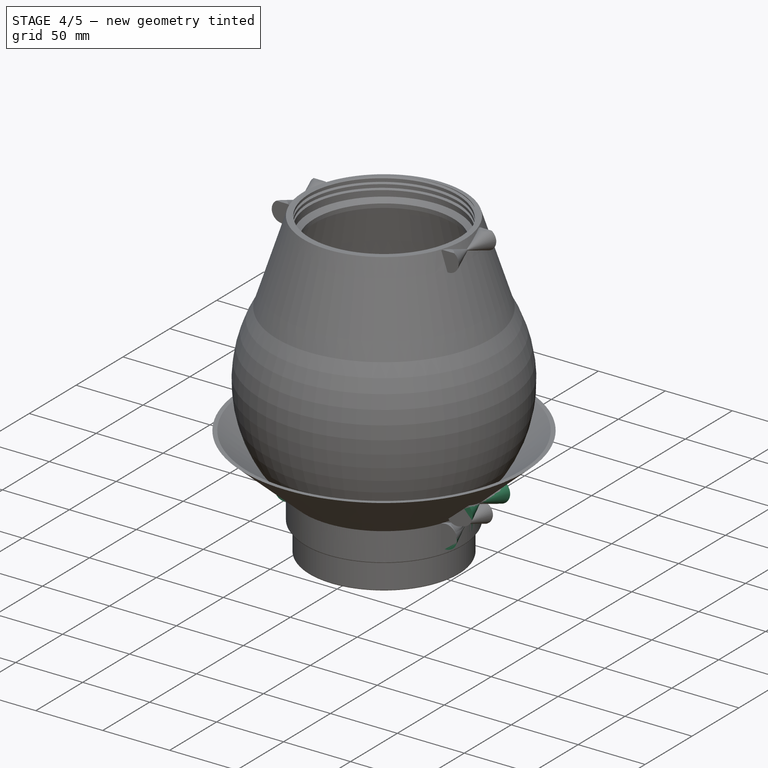
[diagram: stage 4 of 5 — iso view after this stage's code; geometry added in this stage tinted green]
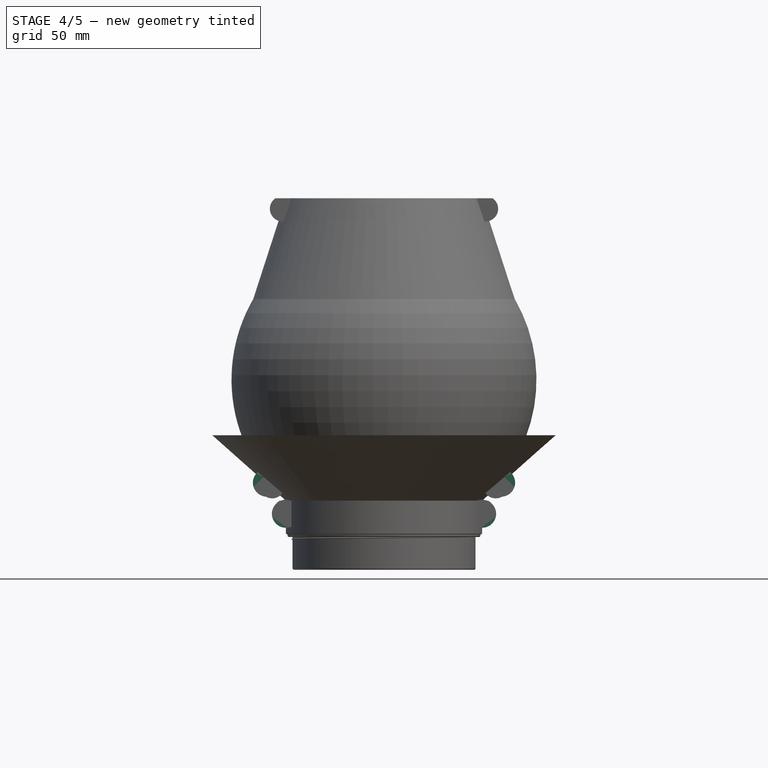
[diagram: stage 4 of 5 — front view after this stage's code; geometry added in this stage tinted green]
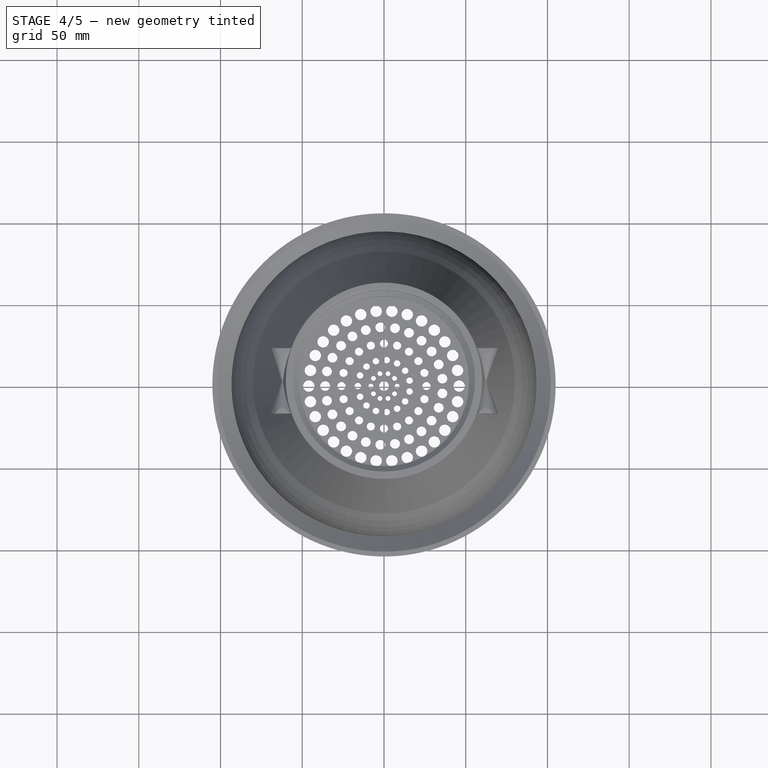
[diagram: stage 4 of 5 — top view after this stage's code; geometry added in this stage tinted green]
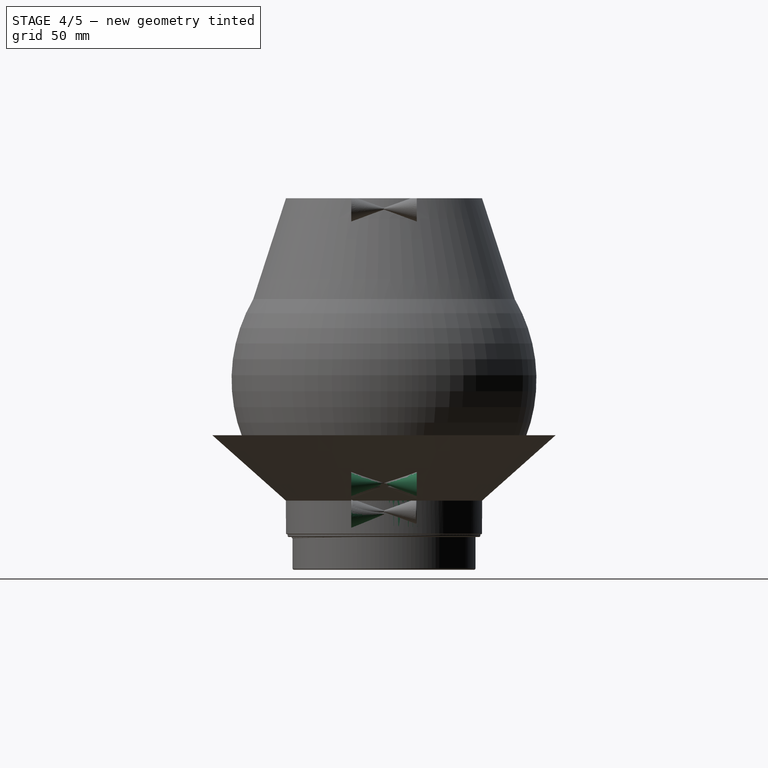
[diagram: stage 4 of 5 — right view after this stage's code; geometry added in this stage tinted green]
FEATURE [Spreadsheet::Sheet] Spreadsheet  label="Parameters"
  PythonMode = false
  ShowCells = 0
  TreeRank = 1
  cells = A1=Thickness; B1(thickness)=3; D1=Thread Pitch; E1(thread_pitch)=4; A2=Filter Diameter; B2(filter_diameter)=110; D2=Thread Depth; E2(thread_depth)=1.5; A3=Thread Overlap; B3(thread_overlap)=10; D3=Thread Angle; E3(thread_angle)=25; A4=O-Ring Diameter; B4(oring_diameter)=4; A5=Filter Plate Tolerance; B5(filter_plate_tolerance)=0.5; A6=Thread Overlap Tolerance; B6(thread_overlap_tolerance)=0.5; A8=Vase Diameter; B8(vase_diameter)=185; A9=Vase Height; B9(vase_height)=185; A11=Funnel Height; B11(funnel_height)=40; A12=Funnel Extra Diameter; B12(funnel_extra_diameter)=90; A14=Collector Body Height; B14(collector_body_height)=40; A15=Stem Max Diameter; B15(stem_max_diameter)=18; A16=Stem Length; B16(stem_length)=40; A18=Buchner Funnel Diameter; B18(buchner_diameter)=112; A19=Buchner Adapter Depth; B19(buchner_adapter_length)=20; B21=Hole Size; C21=Ring Diameter; D21=Quantity; A22=Outer Ring; B22(ring_1_size)==7 * filter_diameter / 110; C22(ring_1_diameter)==46 * filter_diameter / 110; D22(ring_1_count)==30 * filter_diameter / 110; B23(ring_2_size)==6 * filter_diameter / 110; C23(ring_2_diameter)==36 * filter_diameter / 110; D23(ring_2_count)==25 * filter_diameter / 110; A24=Middle Ring; B24(ring_3_size)==5 * filter_diameter / 110; C24(ring_3_diameter)==26 * filter_diameter / 110; D24(ring_3_count)==20 * filter_diameter / 110; B25(ring_4_size)==4 * filter_diameter / 110; C25(ring_4_diameter)==16 * filter_diameter / 110; D25(ring_4_count)==15 * filter_diameter / 110; A26=Inner Ring; B26(ring_5_size)==3 * filter_diameter / 110; C26(ring_5_diameter)==8 * filter_diameter / 110; D26(ring_5_count)==10 * filter_diameter / 110
FEATURE [Sketcher::SketchObject] Sketch
  ArcFitTolerance = 1e-06
  AttachmentSupport = -> [XZ_Plane002]
  ExternalBSplineMaxDegree = 5
  ExternalBSplineTolerance = 0.0001
  FullyConstrained = true
  InternalTolerance = 1e-06
  InvalidShape = false
  MakeInternals = false
  MapMode = 5
  Placement = pos=(0,0,0) rot=(1,0,0;1.5708rad)
  Support = -> [XZ_Plane002]
  TreeRank = 43
  ValidateShape = true
  expr: Constraints[19] = <<Parameters>>.thickness + <<Parameters>>.thread_overlap_tolerance
  expr: Constraints[21] = <<Parameters>>.thickness / 2
  expr: Constraints[24] = <<Parameters>>.thread_overlap
  expr: Constraints[25] = <<Parameters>>.thickness
  expr: Constraints[26] = <<Parameters>>.thickness
  expr: Constraints[2] = <<Parameters>>.filter_diameter / 2 + <<Parameters>>.filter_plate_tolerance
  expr: Constraints[5] = <<Parameters>>.thickness + <<Parameters>>.thread_depth
  expr: Constraints[6] = <<Parameters>>.thread_overlap + <<Parameters>>.thickness
  expr: Constraints[7] = <<Parameters>>.thickness
  sketch-geometry (9):
    g0: LineSegment StartX=-55.5 StartY=0 StartZ=0 EndX=-55.5 EndY=-13 EndZ=0
    g1: LineSegment StartX=-60 StartY=0 StartZ=0 EndX=-60 EndY=-16 EndZ=0
    g2: LineSegment StartX=-60 StartY=-16 StartZ=0 EndX=-55 EndY=-16 EndZ=0
    g3: LineSegment StartX=-55 StartY=-16 StartZ=0 EndX=-55 EndY=-24.5 EndZ=0
    g4: LineSegment StartX=-52 StartY=-16 StartZ=0 EndX=-52 EndY=-26 EndZ=0
    g5: LineSegment StartX=-53.5 StartY=-26 StartZ=0 EndX=-52 EndY=-26 EndZ=0
    g6: LineSegment StartX=-60 StartY=0 StartZ=0 EndX=-55.5 EndY=0 EndZ=0
    g7: LineSegment StartX=-55.5 StartY=-13 StartZ=0 EndX=-52 EndY=-16 EndZ=0
    g8: LineSegment StartX=-53.5 StartY=-26 StartZ=0 EndX=-55 EndY=-24.5 EndZ=0
  constraints (27):
    c: PointOnObject(g0,g-1)
    c: Vertical(g0)
    c: DistanceX(g0,g-1) = 55.5
    c: PointOnObject(g1,g-1)
    c: Vertical(g1)
    c: DistanceX(g1,g0) = 4.5
    c: DistanceY(g0,g0) = 13
    c: DistanceY(g1,g0) = 3
    c: Coincident(g2,g1)
    c: Horizontal(g2)
    c: Coincident(g3,g2)
    c: Vertical(g3)
    c: Vertical(g4)
    c: Horizontal(g5)
    c: Coincident(g4,g5)
    c: Coincident(g6,g1)
    c: Coincident(g6,g0)
    c: Coincident(g7,g0)
    c: Coincident(g4,g7)
    c: DistanceX(g0,g4) = 3.5
    c: Angle(g5,g8) = 2.35619
    c: DistanceX(g8,g4) = 1.5
    c: Coincident(g3,g8)
    c: Coincident(g5,g8)
    c: DistanceY(g4,g4) = 10
    c: DistanceX(g3,g4) = 3
    c: DistanceY(g4,g0) = 3
FEATURE [PartDesign::Revolution] Revolution
  AddSubType = 0
  Angle = 360
  Axis = (0,-2e-16,1)
  Base = (0,0,0)
  ClaimChildren = false
  Fit = 0
  FitJoin = 0
  InnerFit = 0
  InnerFitJoin = 0
  InvalidShape = false
  Linearize = true
  NewSolid = false
  Profile = -> Sketch
  ReferenceAxis = -> Sketch [V_Axis]
  Suppress = false
  TreeRank = 44
  ValidateShape = true
  _ProfileBasedVersion = 1
FEATURE [Sketcher::SketchObject] Sketch001
  ArcFitTolerance = 1e-06
  AttachmentSupport = -> [XZ_Plane002]
  ExternalBSplineMaxDegree = 5
  ExternalBSplineTolerance = 0.0001
  FullyConstrained = true
  InternalTolerance = 1e-06
  InvalidShape = false
  MakeInternals = false
  MapMode = 5
  Placement = pos=(0,0,0) rot=(1,0,0;1.5708rad)
  Support = -> [XZ_Plane002]
  TreeRank = 45
  ValidateShape = true
  expr: Constraints[10] = <<Parameters>>.filter_diameter / 2 + <<Parameters>>.filter_plate_tolerance
  expr: Constraints[7] = <<Parameters>>.thread_pitch / 1.9
  expr: Constraints[8] = <<Parameters>>.thread_depth * 1.1
  expr: Constraints[9] = 90 - <<Parameters>>.thread_angle
  sketch-geometry (4):
    g0: LineSegment StartX=-55.5 StartY=2.10526 StartZ=0 EndX=-55.5 EndY=0 EndZ=0
    g1: LineSegment StartX=-55.5 StartY=0 StartZ=0 EndX=-57.15 EndY=0.769408 EndZ=0
    g2: LineSegment StartX=-55.5 StartY=2.10526 StartZ=0 EndX=-57.15 EndY=1.33586 EndZ=0
    g3: LineSegment StartX=-57.15 StartY=1.33586 StartZ=0 EndX=-57.15 EndY=0.769408 EndZ=0
  constraints (12):
    c: Vertical(g0)
    c: Coincident(g1,g0)
    c: Coincident(g2,g0)
    c: Coincident(g3,g2)
    c: Coincident(g3,g1)
    c: Vertical(g3)
    c: Equal(g2,g1)
    c: DistanceY(g0,g0) = 2.10526
    c: DistanceX(g2,g0) = 1.65
    c: Angle(g2,g0) = 1.13446
    c: DistanceX(g0,g-1) = 55.5
    c: DistanceY(g-1,g0) = 0
FEATURE [Sketcher::SketchObject] Sketch002
  ArcFitTolerance = 1e-06
  AttachmentSupport = -> [XZ_Plane002]
  ExternalBSplineMaxDegree = 5
  ExternalBSplineTolerance = 0.0001
  FullyConstrained = true
  InternalTolerance = 1e-06
  InvalidShape = false
  MakeInternals = false
  MapMode = 5
  Placement = pos=(0,0,0) rot=(1,0,0;1.5708rad)
  Support = -> [XZ_Plane002]
  TreeRank = 47
  ValidateShape = true
  expr: Constraints[10] = <<Parameters>>.filter_diameter / 2 - <<Parameters>>.thread_overlap_tolerance + <<Parameters>>.filter_plate_tolerance
  expr: Constraints[11] = 2 * <<Parameters>>.thread_overlap + <<Parameters>>.thickness * 1.5
  expr: Constraints[7] = <<Parameters>>.thread_pitch / 2.1
  expr: Constraints[8] = <<Parameters>>.thread_depth
  expr: Constraints[9] = 90 - <<Parameters>>.thread_angle
  sketch-geometry (4):
    g0: LineSegment StartX=-55 StartY=-22.5952 StartZ=0 EndX=-55 EndY=-24.5 EndZ=0
    g1: LineSegment StartX=-55 StartY=-24.5 StartZ=0 EndX=-56.5 EndY=-23.8005 EndZ=0
    g2: LineSegment StartX=-55 StartY=-22.5952 StartZ=0 EndX=-56.5 EndY=-23.2947 EndZ=0
    g3: LineSegment StartX=-56.5 StartY=-23.2947 StartZ=0 EndX=-56.5 EndY=-23.8005 EndZ=0
  constraints (12):
    c: Vertical(g0)
    c: Coincident(g1,g0)
    c: Coincident(g2,g0)
    c: Coincident(g3,g2)
    c: Coincident(g3,g1)
    c: Vertical(g3)
    c: Equal(g1,g2)
    c: DistanceY(g0,g0) = 1.90476
    c: DistanceX(g2,g0) = 1.5
    c: Angle(g2,g0) = 1.13446
    c: DistanceX(g0,g-1) = 55
    c: DistanceY(g0,g-1) = 24.5
FEATURE [PartDesign::AdditiveHelix] Helix001
  AddSubType = 0
  Angle = 0
  Axis = (0,-2e-16,1)
  Base = (0,0,0)
  BaseFeature = -> Revolution
  ClaimChildren = false
  Fit = 0
  FitJoin = 0
  Growth = 0
  HasBeenEdited = true
  Height = 4
  InnerFit = 0
  InnerFitJoin = 0
  InvalidShape = false
  LeftHanded = false
  Linearize = true
  Mode = 1
  NewSolid = false
  Outside = false
  Pitch = 4
  Profile = -> Sketch002
  ReferenceAxis = -> Sketch002 [V_Axis]
  Suppress = false
  TreeRank = 48
  Turns = 1
  ValidateShape = true
  _ProfileBasedVersion = 1
  expr: Pitch = <<Parameters>>.thread_pitch
FEATURE [Sketcher::SketchObject] Sketch030
  ArcFitTolerance = 1e-06
  AttachmentSupport = -> [XZ_Plane]
  ExternalBSplineMaxDegree = 5
  ExternalBSplineTolerance = 0.0001
  FullyConstrained = true
  InternalTolerance = 1e-06
  InvalidShape = false
  MakeInternals = false
  MapMode = 5
  Placement = pos=(0,0,0) rot=(1,0,0;1.5708rad)
  Support = -> [XZ_Plane]
  TreeRank = 47
  ValidateShape = true
  expr: Constraints[10] = <<Parameters>>.filter_diameter / 2 - <<Parameters>>.thread_overlap_tolerance + <<Parameters>>.filter_plate_tolerance
  expr: Constraints[11] = <<Parameters>>.thread_overlap - <<Parameters>>.thickness / 2
  expr: Constraints[7] = <<Parameters>>.thread_pitch / 2.1
  expr: Constraints[8] = <<Parameters>>.thread_depth
  expr: Constraints[9] = 90 - <<Parameters>>.thread_angle
  sketch-geometry (4):
    g0: LineSegment StartX=-55 StartY=-6.59524 StartZ=0 EndX=-55 EndY=-8.5 EndZ=0
    g1: LineSegment StartX=-55 StartY=-8.5 StartZ=0 EndX=-56.5 EndY=-7.80054 EndZ=0
    g2: LineSegment StartX=-55 StartY=-6.59524 StartZ=0 EndX=-56.5 EndY=-7.2947 EndZ=0
    g3: LineSegment StartX=-56.5 StartY=-7.2947 StartZ=0 EndX=-56.5 EndY=-7.80054 EndZ=0
  constraints (12):
    c: Vertical(g0)
    c: Coincident(g1,g0)
    c: Coincident(g2,g0)
    c: Coincident(g3,g2)
    c: Coincident(g3,g1)
    c: Vertical(g3)
    c: Equal(g1,g2)
    c: DistanceY(g0,g0) = 1.90476
    c: DistanceX(g2,g0) = 1.5
    c: Angle(g2,g0) = 1.13446
    c: DistanceX(g0,g-1) = 55
    c: DistanceY(g0,g-1) = 8.5
FEATURE [Sketcher::SketchObject] Sketch032
  ArcFitTolerance = 1e-06
  AttachmentSupport = -> [XZ_Plane002]
  ExternalBSplineMaxDegree = 5
  ExternalBSplineTolerance = 0.0001
  FullyConstrained = true
  InternalTolerance = 1e-06
  InvalidShape = false
  MakeInternals = false
  MapMode = 5
  Placement = pos=(0,0,0) rot=(1,0,0;1.5708rad)
  Support = -> [XZ_Plane002]
  TreeRank = 144
  ValidateShape = true
  expr: Constraints[0] = 1
  expr: Constraints[5] = <<Parameters>>.filter_diameter / 2 + <<Parameters>>.thickness + <<Parameters>>.thread_depth + <<Parameters>>.filter_plate_tolerance
  expr: Constraints[6] = (2 * <<Parameters>>.thickness + <<Parameters>>.thread_overlap) / 2
  sketch-geometry (2):
    g0: ArcOfCircle CenterX=-60 CenterY=-8 CenterZ=0 NormalX=0 NormalY=0 NormalZ=1 AngleXU=0 Radius=0.5 StartAngle=1.5708 EndAngle=4.71239
    g1: LineSegment StartX=-60 StartY=-7.5 StartZ=0 EndX=-60 EndY=-8.5 EndZ=0
  constraints (7):
    c: Diameter(g0) = 1
    c: Vertical(g1)
    c: PointOnObject(g0,g1)
    c: Coincident(g0,g1)
    c: Coincident(g0,g1)
    c: DistanceX(g0,g-1) = 60
    c: DistanceY(g0,g-1) = 8
FEATURE [PartDesign::Pad] Pad001
  AddSubType = 0
  AlongSketchNormal = false
  AutoTaperInnerAngle = true
  BaseFeature = -> Helix001
  CheckUpToFaceLimits = true
  ClaimChildren = false
  Direction = (0,-1,-2e-16)
  Fit = 0
  FitJoin = 0
  InnerFit = 0
  InnerFitJoin = 0
  InvalidShape = false
  Length = 20
  Length2 = 100
  Linearize = true
  NewSolid = false
  Profile = -> Sketch032
  Suppress = false
  TaperAngle = 22
  TaperInnerAngle = -22
  TaperInnerAngleRev = 0
  TreeRank = 145
  Type = 0
  ValidateShape = true
  _ProfileBasedVersion = 1
FEATURE [PartDesign::Mirrored] Mirrored001
  AddSubType = 0
  BaseFeature = -> Pad001
  CopyShape = false
  InvalidShape = false
  MirrorPlane = -> Sketch032 [V_Axis]
  NewSolid = false
  OriginalSubs = -> [Pad001]
  Originals = -> [Pad001]
  ParallelTransform = true
  SubTransform = true
  Suppress = false
  TreeRank = 147
  ValidateShape = true
  _Version = 3
FEATURE [PartDesign::Mirrored] Mirrored
  AddSubType = 0
  BaseFeature = -> Mirrored001
  CopyShape = false
  InvalidShape = false
  MirrorPlane = -> XZ_Plane002
  NewSolid = false
  OriginalSubs = -> [Pad001]
  Originals = -> [Pad001]
  ParallelTransform = true
  SubTransform = true
  Suppress = false
  TreeRank = 146
  ValidateShape = true
  _Version = 3
FEATURE [PartDesign::Pad] Pad
  AddSubType = 0
  AlongSketchNormal = false
  AutoTaperInnerAngle = true
  BaseFeature = -> Helix003
  CheckUpToFaceLimits = true
  ClaimChildren = false
  Direction = (0,-1,-2e-16)
  Fit = 0
  FitJoin = 0
  InnerFit = 0
  InnerFitJoin = 0
  InvalidShape = false
  Length = 20
  Length2 = 100
  Linearize = true
  NewSolid = false
  Profile = -> Sketch037
  Suppress = false
  TaperAngle = 22
  TaperInnerAngle = -22
  TaperInnerAngleRev = 0
  TreeRank = 168
  Type = 0
  ValidateShape = true
  _ProfileBasedVersion = 1
FEATURE [PartDesign::Mirrored] Mirrored007
  AddSubType = 0
  BaseFeature = -> Pad
  CopyShape = false
  InvalidShape = false
  MirrorPlane = -> XZ_Plane
  NewSolid = false
  OriginalSubs = -> [Pad]
  Originals = -> [Pad]
  ParallelTransform = true
  SubTransform = true
  Suppress = false
  TreeRank = 170
  ValidateShape = true
  _Version = 3
FEATURE [PartDesign::Mirrored] Mirrored008
  AddSubType = 0
  BaseFeature = -> Mirrored007
  CopyShape = false
  InvalidShape = false
  MirrorPlane = -> YZ_Plane
  NewSolid = false
  OriginalSubs = -> [Mirrored007]
  Originals = -> [Mirrored007]
  ParallelTransform = true
  SubTransform = true
  Suppress = false
  TreeRank = 171
  ValidateShape = true
  _Version = 3
FEATURE [PartDesign::Mirrored] Mirrored006
  AddSubType = 0
  BaseFeature = -> Mirrored008
  CopyShape = false
  InvalidShape = false
  MirrorPlane = -> YZ_Plane
  NewSolid = false
  OriginalSubs = -> [Pad]
  Originals = -> [Pad]
  ParallelTransform = true
  SubTransform = true
  Suppress = false
  TreeRank = 169
  ValidateShape = true
  _Version = 3
FEATURE [PartDesign::Groove] Groove001
  AddSubType = 1
  Angle = 360
  Axis = (0,-2e-16,1)
  Base = (0,0,0)
  BaseFeature = -> Mirrored006
  ClaimChildren = false
  Fit = 0
  FitJoin = 0
  InnerFit = 0
  InnerFitJoin = 0
  InvalidShape = false
  Linearize = true
  NewSolid = false
  Profile = -> Sketch038
  ReferenceAxis = -> Sketch038 [V_Axis]
  Reversed = true
  Suppress = false
  TreeRank = 172
  ValidateShape = true
  _ProfileBasedVersion = 1
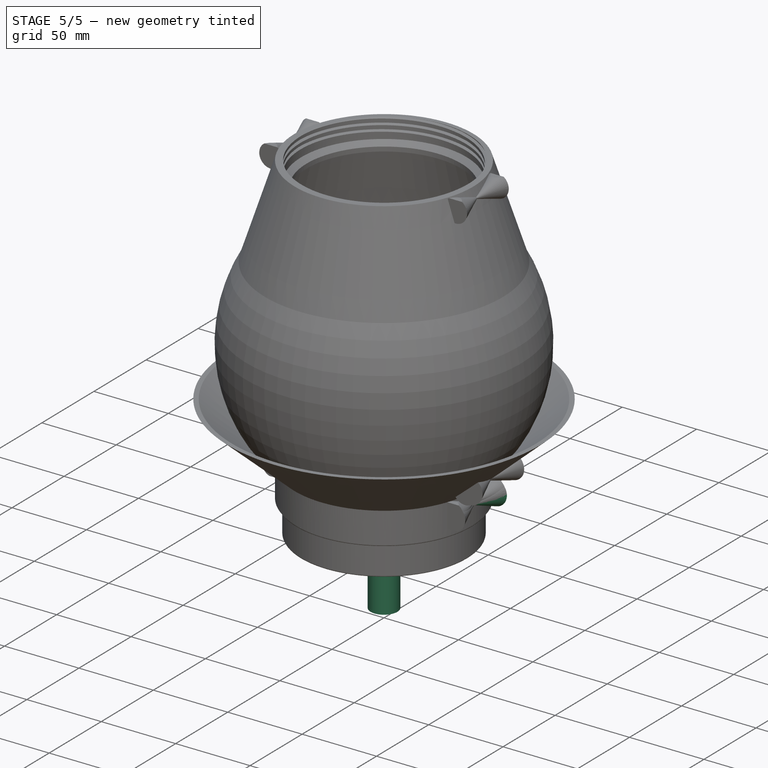
[diagram: stage 5 of 5 — iso view after this stage's code; geometry added in this stage tinted green]
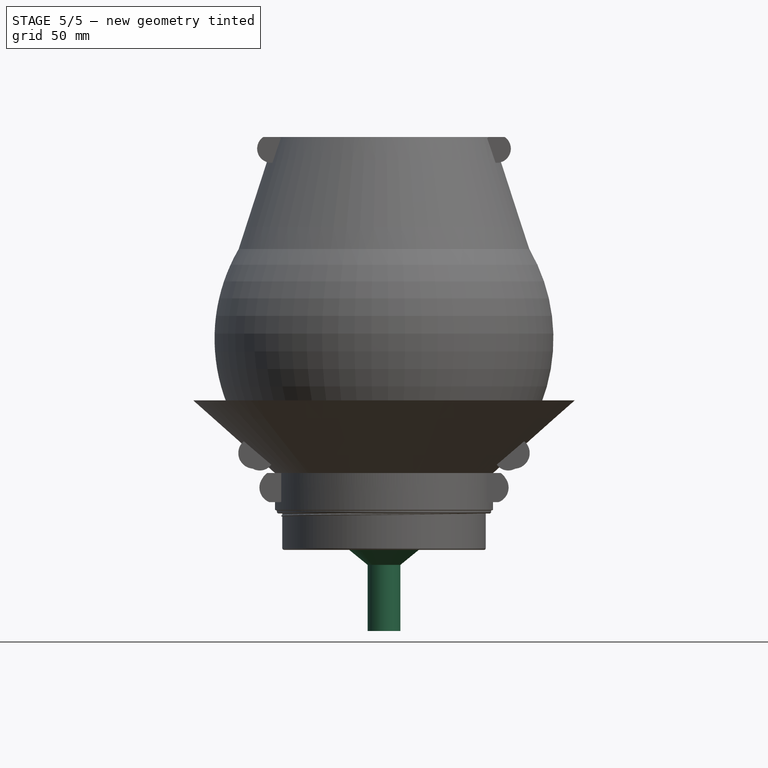
[diagram: stage 5 of 5 — front view after this stage's code; geometry added in this stage tinted green]
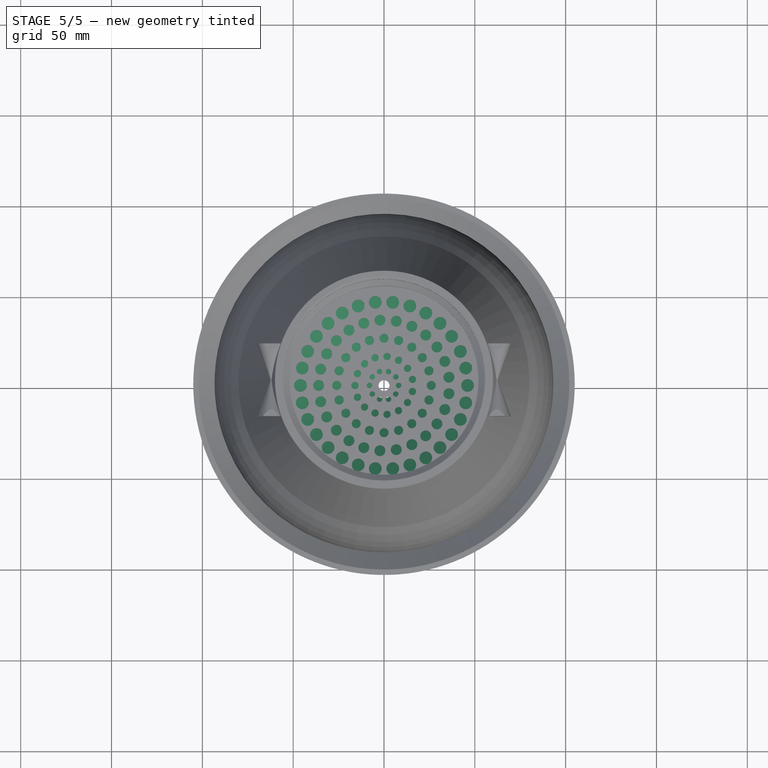
[diagram: stage 5 of 5 — top view after this stage's code; geometry added in this stage tinted green]
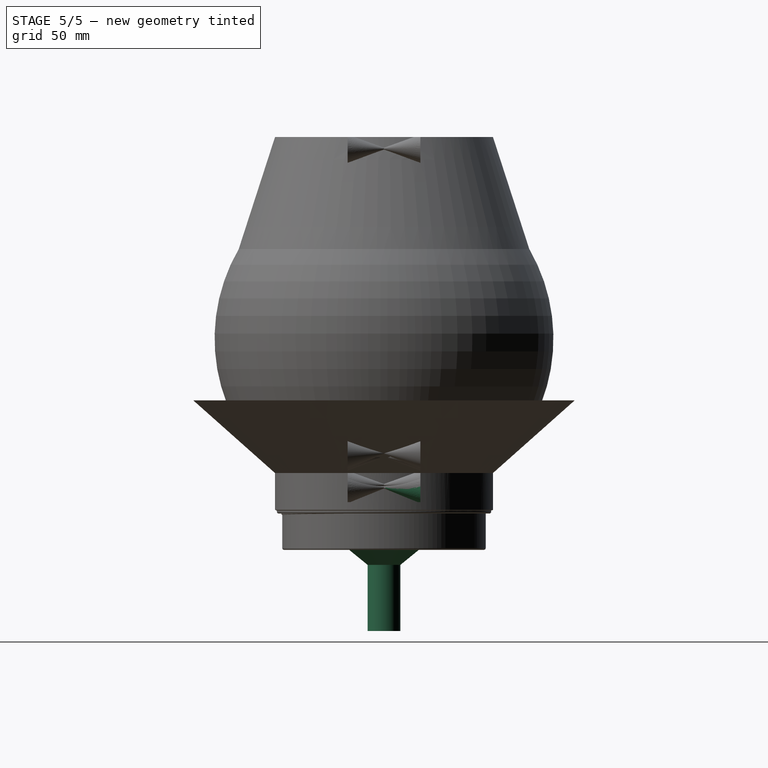
[diagram: stage 5 of 5 — right view after this stage's code; geometry added in this stage tinted green]
FEATURE [Sketcher::SketchObject] Sketch026
  ArcFitTolerance = 1e-06
  AttachmentSupport = -> [XZ_Plane003]
  ExternalBSplineMaxDegree = 5
  ExternalBSplineTolerance = 0.0001
  FullyConstrained = true
  InternalTolerance = 1e-06
  InvalidShape = false
  MakeInternals = false
  MapMode = 5
  Placement = pos=(0,0,0) rot=(1,0,0;1.5708rad)
  Support = -> [XZ_Plane003]
  TreeRank = 43
  ValidateShape = true
  expr: Constraints[13] = <<Parameters>>.collector_body_height
  expr: Constraints[15] = <<Parameters>>.thickness
  expr: Constraints[16] = <<Parameters>>.stem_max_diameter / 2
  expr: Constraints[17] = <<Parameters>>.stem_length
  expr: Constraints[29] = <<Parameters>>.thickness
  expr: Constraints[2] = <<Parameters>>.filter_diameter / 2 + <<Parameters>>.filter_plate_tolerance
  expr: Constraints[5] = <<Parameters>>.thickness + <<Parameters>>.thread_depth
  expr: Constraints[6] = <<Parameters>>.thread_overlap + <<Parameters>>.thickness
  sketch-geometry (10):
    g0: LineSegment StartX=-55.5 StartY=0 StartZ=0 EndX=-55.5 EndY=-13 EndZ=0
    g1: LineSegment StartX=-60 StartY=0 StartZ=0 EndX=-60 EndY=-5.47395 EndZ=0
    g2: LineSegment StartX=-60 StartY=0 StartZ=0 EndX=-55.5 EndY=0 EndZ=0
    g3: LineSegment StartX=-60 StartY=-5.47395 StartZ=0 EndX=-9 EndY=-46.9465 EndZ=0
    g4: LineSegment StartX=-51.5 StartY=-16 StartZ=0 EndX=-6 EndY=-53 EndZ=0
    g5: LineSegment StartX=-9 StartY=-46.9465 StartZ=0 EndX=-9 EndY=-86.9465 EndZ=0
    g6: LineSegment StartX=-6 StartY=-53 StartZ=0 EndX=-6 EndY=-86.9465 EndZ=0
    g7: LineSegment StartX=-6 StartY=-86.9465 StartZ=0 EndX=-9 EndY=-86.9465 EndZ=0
    g8: LineSegment StartX=-55.5 StartY=-13 StartZ=0 EndX=-51.5 EndY=-16 EndZ=0
    g9: LineSegment [constr] StartX=-55.5 StartY=-13 StartZ=0 EndX=-53.6073 EndY=-10.6724 EndZ=0
  constraints (30):
    c: PointOnObject(g0,g-1)
    c: Vertical(g0)
    c: DistanceX(g0,g-1) = 55.5
    c: PointOnObject(g1,g-1)
    c: Vertical(g1)
    c: DistanceX(g1,g0) = 4.5
    c: DistanceY(g0,g0) = 13
    c: Coincident(g2,g1)
    c: Coincident(g2,g0)
    c: Vertical(g5)
    c: Coincident(g6,g4)
    c: Vertical(g6)
    c: Horizontal(g7)
    c: DistanceY(g4,g0) = 40
    c: Parallel(g3,g4)
    c: DistanceX(g5,g6) = 3
    c: DistanceX(g5,g-1) = 9
    c: DistanceY(g5,g3) = 40
    c: Coincident(g8,g0)
    c: DistanceY(g8,g0) = 3
    c: DistanceX(g0,g8) = 4
    c: Coincident(g4,g8)
    c: Coincident(g1,g3)
    c: Coincident(g3,g5)
    c: Coincident(g6,g7)
    c: Coincident(g7,g5)
    c: Coincident(g9,g0)
    c: PointOnObject(g9,g3)
    c: Perpendicular(g9,g3)
    c: Distance(g9,g0) = 3
FEATURE [PartDesign::Revolution] Revolution002
  AddSubType = 0
  Angle = 360
  Axis = (0,-2e-16,1)
  Base = (0,0,0)
  ClaimChildren = false
  Fit = 0
  FitJoin = 0
  InnerFit = 0
  InnerFitJoin = 0
  InvalidShape = false
  Linearize = true
  NewSolid = false
  Profile = -> Sketch026
  ReferenceAxis = -> Sketch026 [V_Axis]
  Suppress = false
  TreeRank = 136
  ValidateShape = true
  _ProfileBasedVersion = 1
FEATURE [Sketcher::SketchObject] Sketch027
  ArcFitTolerance = 1e-06
  AttachmentSupport = -> [XZ_Plane003]
  ExternalBSplineMaxDegree = 5
  ExternalBSplineTolerance = 0.0001
  FullyConstrained = true
  InternalTolerance = 1e-06
  InvalidShape = false
  MakeInternals = false
  MapMode = 5
  Placement = pos=(0,0,0) rot=(1,0,0;1.5708rad)
  Support = -> [XZ_Plane003]
  TreeRank = 45
  ValidateShape = true
  expr: Constraints[10] = <<Parameters>>.filter_diameter / 2 + <<Parameters>>.filter_plate_tolerance
  expr: Constraints[7] = <<Parameters>>.thread_pitch / 1.9
  expr: Constraints[8] = <<Parameters>>.thread_depth * 1.1
  expr: Constraints[9] = 90 - <<Parameters>>.thread_angle
  sketch-geometry (4):
    g0: LineSegment StartX=-55.5 StartY=2.10526 StartZ=0 EndX=-55.5 EndY=0 EndZ=0
    g1: LineSegment StartX=-55.5 StartY=0 StartZ=0 EndX=-57.15 EndY=0.769408 EndZ=0
    g2: LineSegment StartX=-55.5 StartY=2.10526 StartZ=0 EndX=-57.15 EndY=1.33586 EndZ=0
    g3: LineSegment StartX=-57.15 StartY=1.33586 StartZ=0 EndX=-57.15 EndY=0.769408 EndZ=0
  constraints (12):
    c: Vertical(g0)
    c: Coincident(g1,g0)
    c: Coincident(g2,g0)
    c: Coincident(g3,g2)
    c: Coincident(g3,g1)
    c: Vertical(g3)
    c: Equal(g2,g1)
    c: DistanceY(g0,g0) = 2.10526
    c: DistanceX(g2,g0) = 1.65
    c: Angle(g2,g0) = 1.13446
    c: DistanceX(g0,g-1) = 55.5
    c: DistanceY(g-1,g0) = 0
FEATURE [PartDesign::SubtractiveHelix] Helix002
  AddSubType = 1
  Angle = 0
  Axis = (0,-2e-16,1)
  Base = (0,0,0)
  BaseFeature = -> Revolution002
  ClaimChildren = false
  Fit = 0
  FitJoin = 0
  Growth = 0
  HasBeenEdited = true
  Height = 11.5
  InnerFit = 0
  InnerFitJoin = 0
  InvalidShape = false
  LeftHanded = false
  Linearize = true
  Mode = 0
  NewSolid = false
  Outside = false
  Pitch = 4
  Profile = -> Sketch027
  ReferenceAxis = -> Sketch027 [V_Axis]
  Reversed = true
  Suppress = false
  TreeRank = 135
  Turns = 2.875
  ValidateShape = true
  _ProfileBasedVersion = 1
  expr: Height = <<Parameters>>.thread_overlap + <<Parameters>>.thickness / 2
  expr: Pitch = <<Parameters>>.thread_pitch
FEATURE [PartDesign::Mirrored] Mirrored002
  AddSubType = 0
  BaseFeature = -> Mirrored
  CopyShape = false
  InvalidShape = false
  MirrorPlane = -> YZ_Plane002
  NewSolid = false
  OriginalSubs = -> [Mirrored]
  Originals = -> [Mirrored]
  ParallelTransform = true
  SubTransform = true
  Suppress = false
  TreeRank = 148
  ValidateShape = true
  _Version = 3
FEATURE [PartDesign::SubtractiveHelix] Helix
  AddSubType = 1
  Angle = 0
  Axis = (0,-2e-16,1)
  Base = (0,0,0)
  BaseFeature = -> Mirrored002
  ClaimChildren = false
  Fit = 0
  FitJoin = 0
  Growth = 0
  HasBeenEdited = true
  Height = 11.5
  InnerFit = 0
  InnerFitJoin = 0
  InvalidShape = false
  LeftHanded = false
  Linearize = true
  Mode = 0
  NewSolid = false
  Outside = false
  Pitch = 4
  Profile = -> Sketch001
  ReferenceAxis = -> Sketch001 [V_Axis]
  Reversed = true
  Suppress = false
  TreeRank = 46
  Turns = 2.875
  ValidateShape = true
  _ProfileBasedVersion = 1
  expr: Height = <<Parameters>>.thread_overlap + <<Parameters>>.thickness / 2
  expr: Pitch = <<Parameters>>.thread_pitch
FEATURE [Sketcher::SketchObject] Sketch033
  ArcFitTolerance = 1e-06
  AttachmentSupport = -> [XZ_Plane003]
  ExternalBSplineMaxDegree = 5
  ExternalBSplineTolerance = 0.0001
  FullyConstrained = true
  InternalTolerance = 1e-06
  InvalidShape = false
  MakeInternals = false
  MapMode = 5
  Placement = pos=(0,0,0) rot=(1,0,0;1.5708rad)
  Support = -> [XZ_Plane003]
  TreeRank = 144
  ValidateShape = true
  expr: Constraints[0] = 1
  expr: Constraints[5] = <<Parameters>>.filter_diameter / 2 + <<Parameters>>.thickness + <<Parameters>>.thread_depth + <<Parameters>>.filter_plate_tolerance
  expr: Constraints[6] = (<<Parameters>>.thread_overlap + <<Parameters>>.thickness) / 2
  sketch-geometry (2):
    g0: ArcOfCircle CenterX=-60 CenterY=-6.5 CenterZ=0 NormalX=0 NormalY=0 NormalZ=1 AngleXU=0 Radius=0.5 StartAngle=1.5708 EndAngle=4.71239
    g1: LineSegment StartX=-60 StartY=-6 StartZ=0 EndX=-60 EndY=-7 EndZ=0
  constraints (7):
    c: Diameter(g0) = 1
    c: Vertical(g1)
    c: PointOnObject(g0,g1)
    c: Coincident(g0,g1)
    c: Coincident(g0,g1)
    c: DistanceX(g0,g-1) = 60
    c: DistanceY(g0,g-1) = 6.5
FEATURE [PartDesign::Pad] Pad002
  AddSubType = 0
  AlongSketchNormal = false
  AutoTaperInnerAngle = true
  BaseFeature = -> Helix002
  CheckUpToFaceLimits = true
  ClaimChildren = false
  Direction = (0,-1,-2e-16)
  Fit = 0
  FitJoin = 0
  InnerFit = 0
  InnerFitJoin = 0
  InvalidShape = false
  Length = 20
  Length2 = 100
  Linearize = true
  NewSolid = false
  Profile = -> Sketch033
  Suppress = false
  TaperAngle = 20
  TaperInnerAngle = -20
  TaperInnerAngleRev = 0
  TreeRank = 153
  Type = 0
  ValidateShape = true
  _ProfileBasedVersion = 1
FEATURE [PartDesign::Mirrored] Mirrored003
  AddSubType = 0
  BaseFeature = -> Pad002
  CopyShape = false
  InvalidShape = false
  MirrorPlane = -> XZ_Plane003
  NewSolid = false
  OriginalSubs = -> [Pad002]
  Originals = -> [Pad002]
  ParallelTransform = true
  SubTransform = true
  Suppress = false
  TreeRank = 150
  ValidateShape = true
  _Version = 3
FEATURE [PartDesign::Mirrored] Mirrored004
  AddSubType = 0
  BaseFeature = -> Mirrored003
  CopyShape = false
  InvalidShape = false
  MirrorPlane = -> Sketch033 [V_Axis]
  NewSolid = false
  OriginalSubs = -> [Pad002]
  Originals = -> [Pad002]
  ParallelTransform = true
  SubTransform = true
  Suppress = false
  TreeRank = 151
  ValidateShape = true
  _Version = 3
FEATURE [PartDesign::Mirrored] Mirrored005
  AddSubType = 0
  BaseFeature = -> Mirrored004
  CopyShape = false
  InvalidShape = false
  MirrorPlane = -> YZ_Plane003
  NewSolid = false
  OriginalSubs = -> [Mirrored003]
  Originals = -> [Mirrored003]
  ParallelTransform = true
  SubTransform = true
  Suppress = false
  TreeRank = 152
  ValidateShape = true
  _Version = 3
FEATURE [Sketcher::SketchObject] Sketch034
  ArcFitTolerance = 1e-06
  AttachmentSupport = -> [XZ_Plane003]
  ExternalBSplineMaxDegree = 5
  ExternalBSplineTolerance = 0.0001
  FullyConstrained = false
  InternalTolerance = 1e-06
  InvalidShape = false
  MakeInternals = false
  MapMode = 5
  Placement = pos=(0,0,0) rot=(1,0,0;1.5708rad)
  Support = -> [XZ_Plane003]
  TreeRank = 154
  ValidateShape = true
  sketch-geometry (4):
    g0: LineSegment StartX=-121.389 StartY=0 StartZ=0 EndX=130.411 EndY=0 EndZ=0
    g1: LineSegment StartX=130.411 StartY=0 StartZ=0 EndX=130.411 EndY=53.9798 EndZ=0
    g2: LineSegment StartX=130.411 StartY=53.9798 StartZ=0 EndX=-121.389 EndY=53.9798 EndZ=0
    g3: LineSegment StartX=-121.389 StartY=53.9798 StartZ=0 EndX=-121.389 EndY=0 EndZ=0
  constraints (9):
    c: Coincident(g0,g1)
    c: Coincident(g1,g2)
    c: Coincident(g2,g3)
    c: Coincident(g3,g0)
    c: Horizontal(g0)
    c: Horizontal(g2)
    c: Vertical(g1)
    c: Vertical(g3)
    c: PointOnObject(g0,g-1)
FEATURE [PartDesign::Pocket] Pocket
  AddSubType = 1
  AutoTaperInnerAngle = true
  BaseFeature = -> Mirrored005
  CheckUpToFaceLimits = true
  ClaimChildren = false
  Fit = 0
  FitJoin = 0
  InnerFit = 0
  InnerFitJoin = 0
  InvalidShape = false
  Length = 100
  Length2 = 100
  Linearize = true
  NewSolid = false
  Profile = -> Sketch034
  Suppress = false
  TaperInnerAngle = 0
  TaperInnerAngleRev = 0
  TreeRank = 155
  Type = 4
  ValidateShape = true
  _ProfileBasedVersion = 1
  _Version = 1
FEATURE [PartDesign::Body] Body003  label="Collector"
  AutoGroupSolids = false
  ClaimAllChildren = false
  ExportMode = 0
  Group = -> [Revolution002,Helix002,Sketch026,Sketch027,Pad002,Mirrored003,Mirrored004,Mirrored005,Sketch033,Sketch034,Pocket]
  InvalidShape = false
  Origin = -> Origin003
  Tip = -> Pocket
  TreeRank = 42
  ValidateShape = true
  _ExportChildren = -> [Revolution002,Helix002,Pad002,Mirrored003,Mirrored004,Mirrored005,Pocket]
  _GroupVersion = 1
FEATURE [Sketcher::SketchObject] Sketch035
  ArcFitTolerance = 1e-06
  AttachmentSupport = -> [XZ_Plane002]
  ExternalBSplineMaxDegree = 5
  ExternalBSplineTolerance = 0.0001
  FullyConstrained = false
  InternalTolerance = 1e-06
  InvalidShape = false
  MakeInternals = false
  MapMode = 5
  Placement = pos=(0,0,0) rot=(1,0,0;1.5708rad)
  Support = -> [XZ_Plane002]
  TreeRank = 156
  ValidateShape = true
  sketch-geometry (4):
    g0: LineSegment StartX=-122.66 StartY=0 StartZ=0 EndX=106.734 EndY=0 EndZ=0
    g1: LineSegment StartX=106.734 StartY=0 StartZ=0 EndX=106.734 EndY=10.3795 EndZ=0
    g2: LineSegment StartX=106.734 StartY=10.3795 StartZ=0 EndX=-122.66 EndY=10.3795 EndZ=0
    g3: LineSegment StartX=-122.66 StartY=10.3795 StartZ=0 EndX=-122.66 EndY=0 EndZ=0
  constraints (9):
    c: Coincident(g0,g1)
    c: Coincident(g1,g2)
    c: Coincident(g2,g3)
    c: Coincident(g3,g0)
    c: Horizontal(g0)
    c: Horizontal(g2)
    c: Vertical(g1)
    c: Vertical(g3)
    c: PointOnObject(g0,g-1)
FEATURE [PartDesign::Pocket] Pocket014
  AddSubType = 1
  AutoTaperInnerAngle = true
  BaseFeature = -> Helix
  CheckUpToFaceLimits = true
  ClaimChildren = false
  Fit = 0
  FitJoin = 0
  InnerFit = 0
  InnerFitJoin = 0
  InvalidShape = false
  Length = 100
  Length2 = 100
  Linearize = true
  NewSolid = false
  Profile = -> Sketch035
  Suppress = false
  TaperInnerAngle = 0
  TaperInnerAngleRev = 0
  TreeRank = 157
  Type = 4
  ValidateShape = true
  _ProfileBasedVersion = 1
  _Version = 1
FEATURE [Sketcher::SketchObject] Sketch036
  ArcFitTolerance = 1e-06
  AttachmentSupport = -> [XZ_Plane002]
  ExternalBSplineMaxDegree = 5
  ExternalBSplineTolerance = 0.0001
  FullyConstrained = false
  InternalTolerance = 1e-06
  InvalidShape = false
  MakeInternals = false
  MapMode = 5
  Placement = pos=(0,0,0) rot=(1,0,0;1.5708rad)
  Support = -> [XZ_Plane002]
  TreeRank = 158
  ValidateShape = true
  expr: Constraints[8] = <<Parameters>>.thread_overlap + 2 * <<Parameters>>.thickness
  expr: Constraints[9] = <<Parameters>>.filter_diameter / 2
  sketch-geometry (4):
    g0: LineSegment StartX=-55 StartY=-16 StartZ=0 EndX=-77.2441 EndY=-16 EndZ=0
    g1: LineSegment StartX=-77.2441 StartY=-16 StartZ=0 EndX=-77.2441 EndY=-18.1621 EndZ=0
    g2: LineSegment StartX=-77.2441 StartY=-18.1621 StartZ=0 EndX=-55 EndY=-18.1621 EndZ=0
    g3: LineSegment StartX=-55 StartY=-18.1621 StartZ=0 EndX=-55 EndY=-16 EndZ=0
  constraints (10):
    c: Coincident(g0,g1)
    c: Coincident(g1,g2)
    c: Coincident(g2,g3)
    c: Coincident(g3,g0)
    c: Horizontal(g0)
    c: Horizontal(g2)
    c: Vertical(g1)
    c: Vertical(g3)
    c: DistanceY(g0,g-1) = 16
    c: DistanceX(g0,g-1) = 55
FEATURE [PartDesign::Groove] Groove
  AddSubType = 1
  Angle = 360
  Axis = (0,-2e-16,1)
  Base = (0,0,0)
  BaseFeature = -> Pocket014
  ClaimChildren = false
  Fit = 0
  FitJoin = 0
  FixShape = 1
  InnerFit = 0
  InnerFitJoin = 0
  InvalidShape = false
  Linearize = true
  NewSolid = false
  Profile = -> Sketch036
  ReferenceAxis = -> Sketch036 [V_Axis]
  Reversed = true
  Suppress = false
  TreeRank = 159
  ValidateShape = true
  _ProfileBasedVersion = 1
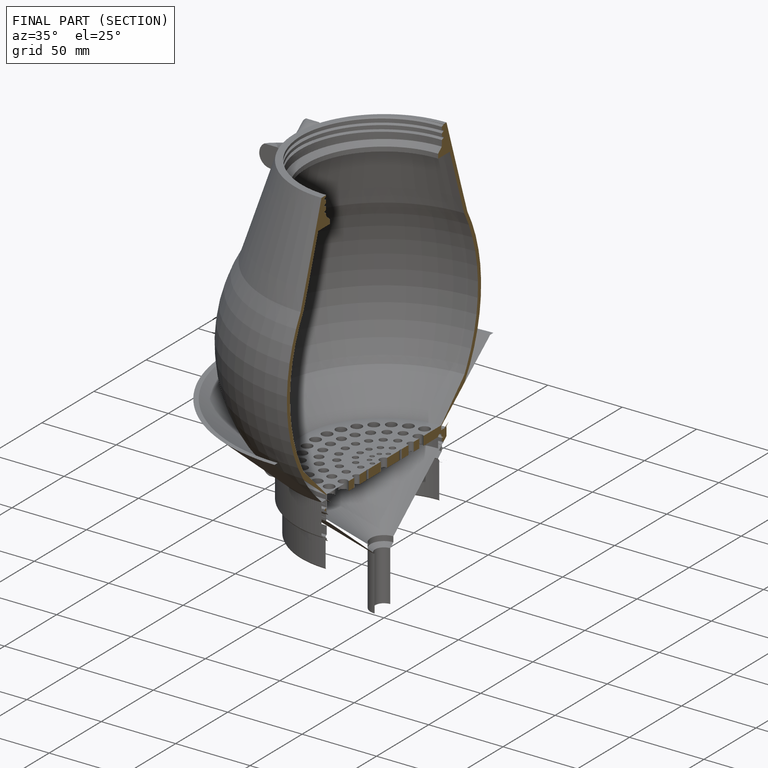
[diagram: finished part — half-section view (interior)]
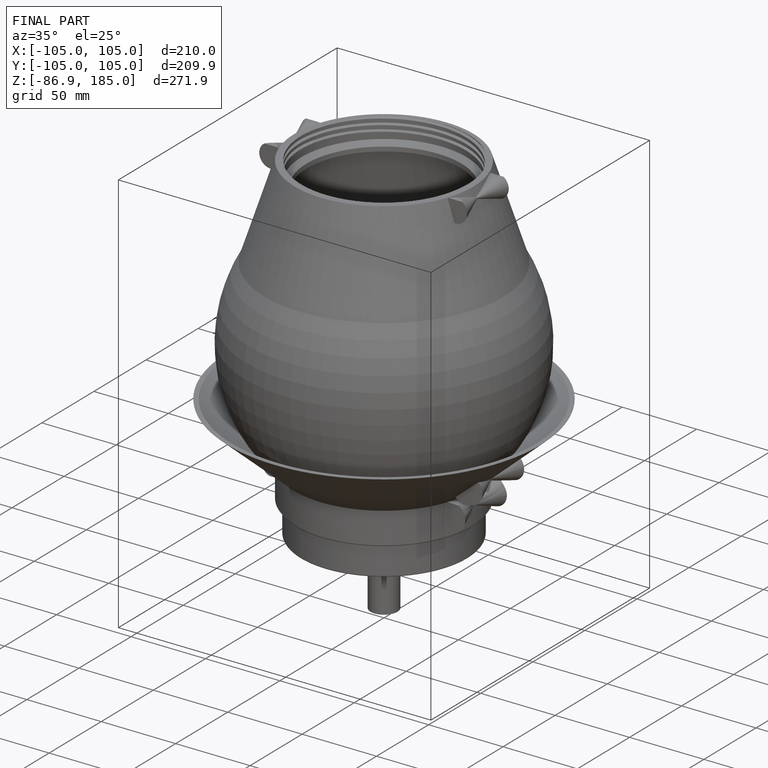
[diagram: finished part — iso view with bounding-box wireframe]
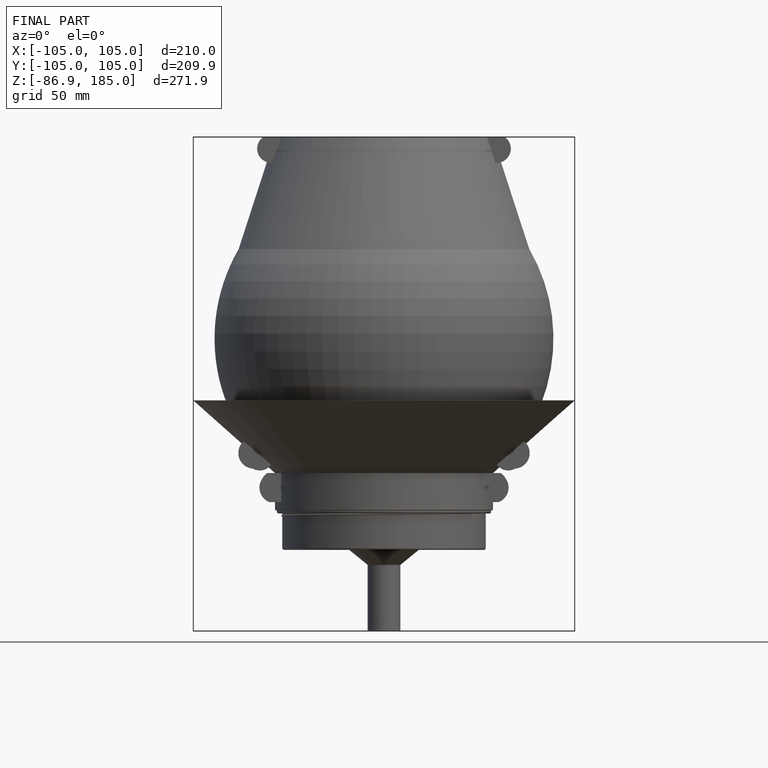
[diagram: finished part — front view with bounding-box wireframe]
